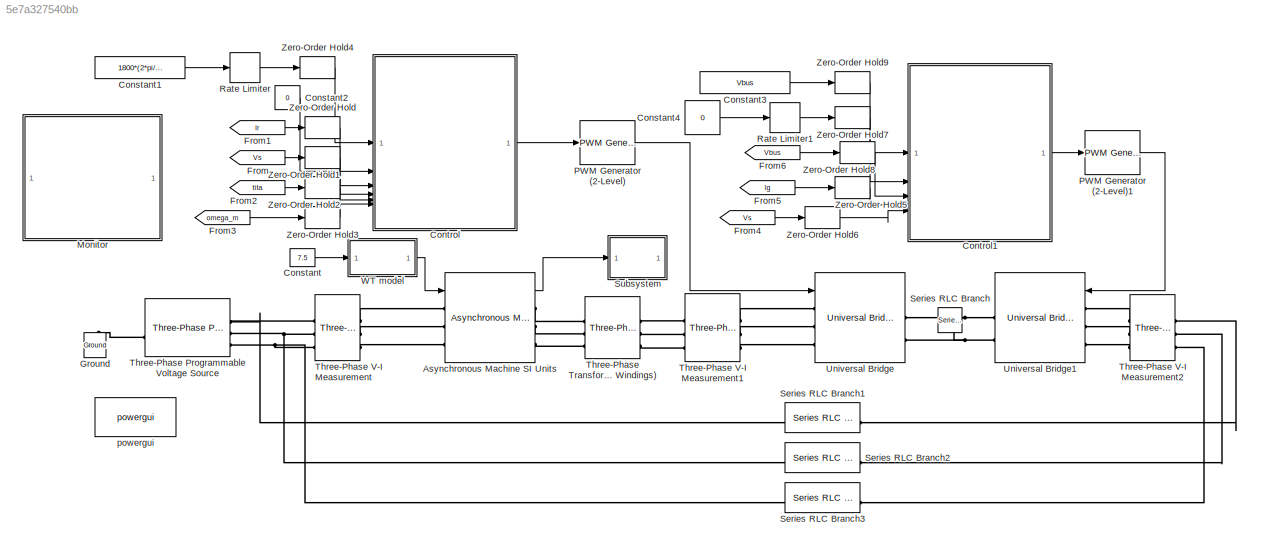
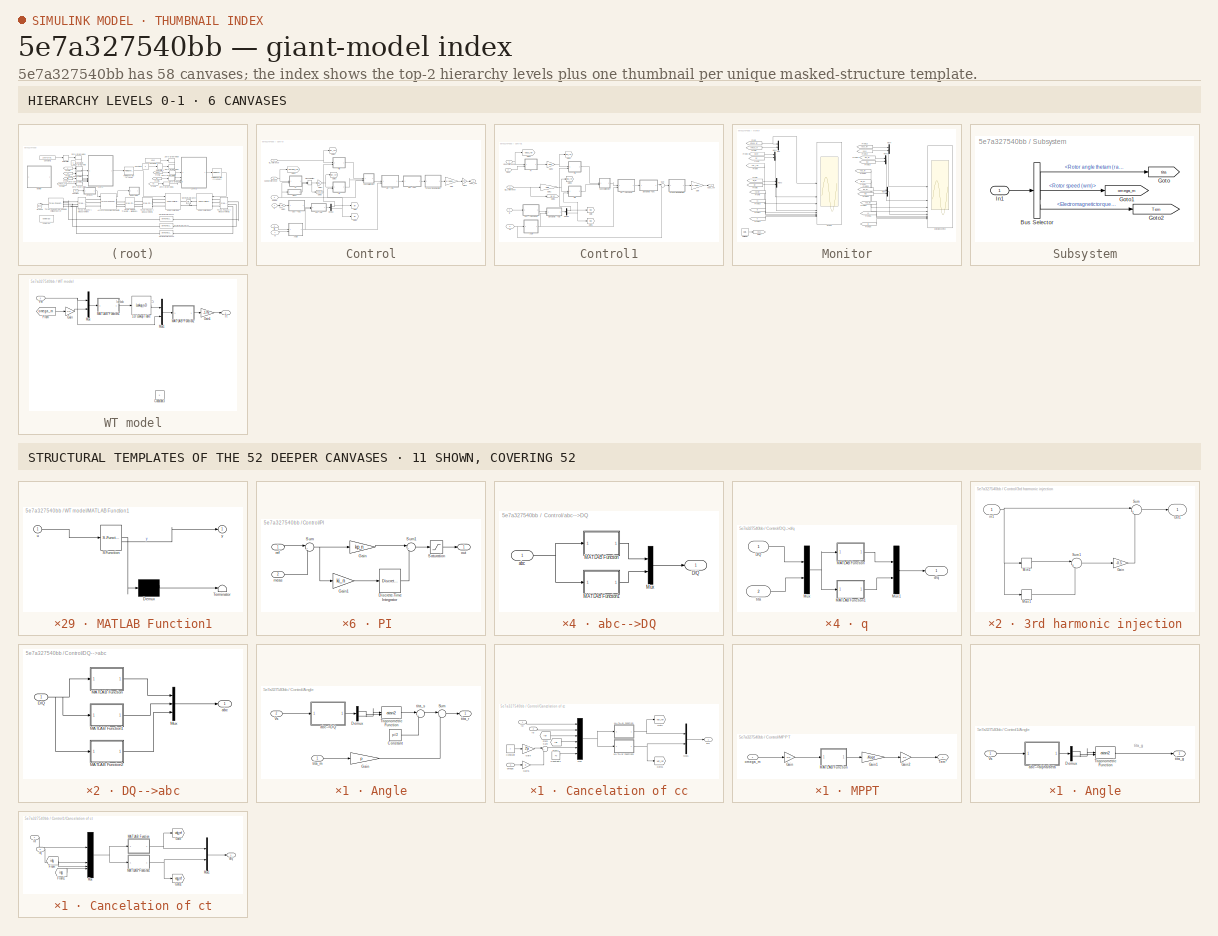
[diagram: thumbnail index - top-2 hierarchy levels (6 canvases) + 11 structural-template representatives of the remaining 52 canvases]
MODEL slx_5e7a327540bb
KIND model
CONFIG AbsTol = auto
CONFIG EnableMultiTasking = off
CONFIG FixedStep = auto
CONFIG MaxStep = auto
CONFIG MinStep = auto
CONFIG RelTol = 1e-3
CONFIG SampleTimeConstraint = Unconstrained
CONFIG SolverName = VariableStepAuto
CONFIG StartTime = 0.0
CONFIG StopTime = 10.0
BLOCK [Reference] Asynchronous Machine SI Units  REF=spsAsynchronousMachineSIUnitsLib/Asynchronous Machine
SI Units
  LibrarySourceBlock = sps_lib/Electrical Machines/Asynchronous Machine\nSI Units
  SourceBlock = spsAsynchronousMachineSIUnitsLib/Asynchronous Machine\nSI Units
  SourceType = Asynchronous Machine
BLOCK [Constant] Constant
  Value = 7.5
BLOCK [Constant] Constant1
  Value = 1800*(2*pi/60)
BLOCK [Constant] Constant2
  Value = 0
BLOCK [Constant] Constant3
  Value = Vbus
BLOCK [Constant] Constant4
  Value = 0
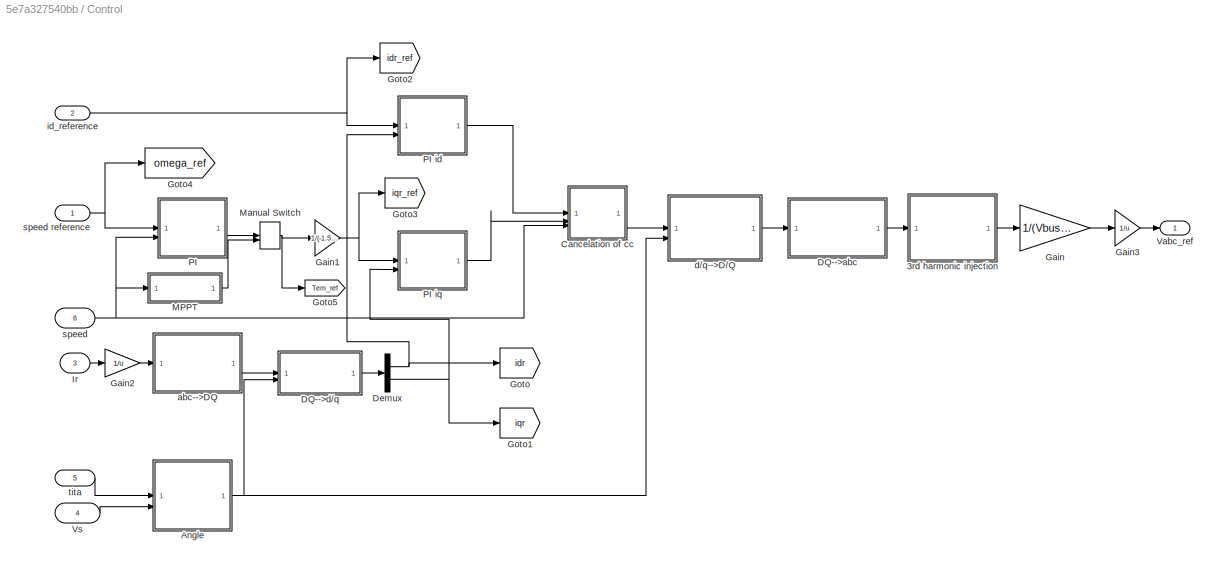
BLOCK [SubSystem] Control
BLOCK [SubSystem] Control/3rd harmonic injection
BLOCK [Gain] Control/3rd harmonic injection/Gain
  Gain = -0.5
BLOCK [MinMax] Control/3rd harmonic injection/Max1
  Function = max
BLOCK [MinMax] Control/3rd harmonic injection/Min1
BLOCK [Outport] Control/3rd harmonic injection/Out1
BLOCK [Sum] Control/3rd harmonic injection/Sum
  Inputs = |++
BLOCK [Sum] Control/3rd harmonic injection/Sum1
  Inputs = |++
BLOCK [Inport] Control/3rd harmonic injection/in1
BLOCK [SubSystem] Control/Angle
BLOCK [Constant] Control/Angle/Constant
  Value = pi/2
BLOCK [Demux] Control/Angle/Demux
  Outputs = 2
BLOCK [Gain] Control/Angle/Gain
  Gain = p
BLOCK [Sum] Control/Angle/Sum
  Inputs = |+-
BLOCK [Trigonometry] Control/Angle/Trigonometric Function
  Operator = atan2
BLOCK [Inport] Control/Angle/Vs
  Port = 2
BLOCK [SubSystem] Control/Angle/abc-->DQ
BLOCK [SubSystem] Control/Angle/abc-->DQ/MATLAB Function
  ErrorFcn = Stateflow.Translate.translate
  LibrarySourceBlock = simulink/User-Defined\nFunctions/MATLAB Function
  PermitHierarchicalResolution = ExplicitOnly
  SFBlockType = MATLAB Function
  TreatAsAtomicUnit = on
BLOCK [Demux] Control/Angle/abc-->DQ/MATLAB Function/ Demux 
  Outputs = 1
BLOCK [S-Function] Control/Angle/abc-->DQ/MATLAB Function/ SFunction 
  EnableBusSupport = on
  FunctionName = sf_sfun
  PortCounts = [1 2]
  SFcnIsStateOwnerBlock = off
  SFunctionDeploymentMode = off
  Tag = Stateflow S-Function 10
BLOCK [Terminator] Control/Angle/abc-->DQ/MATLAB Function/ Terminator 
BLOCK [Inport] Control/Angle/abc-->DQ/MATLAB Function/u
BLOCK [Outport] Control/Angle/abc-->DQ/MATLAB Function/y
BLOCK [SubSystem] Control/Angle/abc-->DQ/MATLAB Function1
  ErrorFcn = Stateflow.Translate.translate
  LibrarySourceBlock = simulink/User-Defined\nFunctions/MATLAB Function
  PermitHierarchicalResolution = ExplicitOnly
  SFBlockType = MATLAB Function
  TreatAsAtomicUnit = on
BLOCK [Demux] Control/Angle/abc-->DQ/MATLAB Function1/ Demux 
  Outputs = 1
BLOCK [S-Function] Control/Angle/abc-->DQ/MATLAB Function1/ SFunction 
  EnableBusSupport = on
  FunctionName = sf_sfun
  PortCounts = [1 2]
  SFcnIsStateOwnerBlock = off
  SFunctionDeploymentMode = off
  Tag = Stateflow S-Function 11
BLOCK [Terminator] Control/Angle/abc-->DQ/MATLAB Function1/ Terminator 
BLOCK [Inport] Control/Angle/abc-->DQ/MATLAB Function1/u
BLOCK [Outport] Control/Angle/abc-->DQ/MATLAB Function1/y
BLOCK [Mux] Control/Angle/abc-->DQ/Mux
  DisplayOption = bar
  Inputs = 2
BLOCK [Inport] Control/Angle/abc-->DQ/abc
BLOCK [Outport] Control/Angle/abc-->DQ/alpha//beta
BLOCK [Inport] Control/Angle/tita_m
BLOCK [Outport] Control/Angle/tita_r
BLOCK [Sum] Control/Angle/tita_s
  Inputs = |+-
  NameLocation = top
BLOCK [SubSystem] Control/Cancelation of cc
BLOCK [Constant] Control/Cancelation of cc/Constant
  Value = f
BLOCK [Constant] Control/Cancelation of cc/Constant1
  Value = Fs
BLOCK [From] Control/Cancelation of cc/From
  GotoTag = idr
  TagVisibility = global
BLOCK [From] Control/Cancelation of cc/From1
  GotoTag = iqr
  TagVisibility = global
BLOCK [Gain] Control/Cancelation of cc/Gain
  Gain = 2*pi
BLOCK [Gain] Control/Cancelation of cc/Gain1
  Gain = p
BLOCK [Goto] Control/Cancelation of cc/Goto
  GotoTag = vdr_ref
  TagVisibility = global
BLOCK [Goto] Control/Cancelation of cc/Goto1
  GotoTag = vqr_ref
  TagVisibility = global
BLOCK [SubSystem] Control/Cancelation of cc/MATLAB Function
  ErrorFcn = Stateflow.Translate.translate
  LibrarySourceBlock = simulink/User-Defined\nFunctions/MATLAB Function
  PermitHierarchicalResolution = ExplicitOnly
  SFBlockType = MATLAB Function
  TreatAsAtomicUnit = on
BLOCK [Demux] Control/Cancelation of cc/MATLAB Function/ Demux 
  Outputs = 1
BLOCK [S-Function] Control/Cancelation of cc/MATLAB Function/ SFunction 
  EnableBusSupport = on
  FunctionName = sf_sfun
  PortCounts = [1 2]
  SFcnIsStateOwnerBlock = off
  SFunctionDeploymentMode = off
  Tag = Stateflow S-Function 12
BLOCK [Terminator] Control/Cancelation of cc/MATLAB Function/ Terminator 
BLOCK [Inport] Control/Cancelation of cc/MATLAB Function/u
BLOCK [Outport] Control/Cancelation of cc/MATLAB Function/y
BLOCK [SubSystem] Control/Cancelation of cc/MATLAB Function1
  ErrorFcn = Stateflow.Translate.translate
  LibrarySourceBlock = simulink/User-Defined\nFunctions/MATLAB Function
  PermitHierarchicalResolution = ExplicitOnly
  SFBlockType = MATLAB Function
  TreatAsAtomicUnit = on
BLOCK [Demux] Control/Cancelation of cc/MATLAB Function1/ Demux 
  Outputs = 1
BLOCK [S-Function] Control/Cancelation of cc/MATLAB Function1/ SFunction 
  EnableBusSupport = on
  FunctionName = sf_sfun
  PortCounts = [1 2]
  SFcnIsStateOwnerBlock = off
  SFunctionDeploymentMode = off
  Tag = Stateflow S-Function 13
BLOCK [Terminator] Control/Cancelation of cc/MATLAB Function1/ Terminator 
BLOCK [Inport] Control/Cancelation of cc/MATLAB Function1/u
BLOCK [Outport] Control/Cancelation of cc/MATLAB Function1/y
BLOCK [Mux] Control/Cancelation of cc/Mux
  DisplayOption = bar
  Inputs = 6
BLOCK [Mux] Control/Cancelation of cc/Mux1
  DisplayOption = bar
  Inputs = 2
BLOCK [Sum] Control/Cancelation of cc/Sum
  Inputs = |+-
BLOCK [Outport] Control/Cancelation of cc/d//q
BLOCK [Inport] Control/Cancelation of cc/id
BLOCK [Inport] Control/Cancelation of cc/iq
  Port = 2
BLOCK [Inport] Control/Cancelation of cc/omega
  Port = 3
BLOCK [SubSystem] Control/DQ-->abc
BLOCK [Inport] Control/DQ-->abc/D//Q
BLOCK [SubSystem] Control/DQ-->abc/MATLAB Function
  ErrorFcn = Stateflow.Translate.translate
  LibrarySourceBlock = simulink/User-Defined\nFunctions/MATLAB Function
  PermitHierarchicalResolution = ExplicitOnly
  SFBlockType = MATLAB Function
  TreatAsAtomicUnit = on
BLOCK [Demux] Control/DQ-->abc/MATLAB Function/ Demux 
  Outputs = 1
BLOCK [S-Function] Control/DQ-->abc/MATLAB Function/ SFunction 
  EnableBusSupport = on
  FunctionName = sf_sfun
  PortCounts = [1 2]
  SFcnIsStateOwnerBlock = off
  SFunctionDeploymentMode = off
  Tag = Stateflow S-Function 2
BLOCK [Terminator] Control/DQ-->abc/MATLAB Function/ Terminator 
BLOCK [Inport] Control/DQ-->abc/MATLAB Function/u
BLOCK [Outport] Control/DQ-->abc/MATLAB Function/y
BLOCK [SubSystem] Control/DQ-->abc/MATLAB Function1
  ErrorFcn = Stateflow.Translate.translate
  LibrarySourceBlock = simulink/User-Defined\nFunctions/MATLAB Function
  PermitHierarchicalResolution = ExplicitOnly
  SFBlockType = MATLAB Function
  TreatAsAtomicUnit = on
BLOCK [Demux] Control/DQ-->abc/MATLAB Function1/ Demux 
  Outputs = 1
BLOCK [S-Function] Control/DQ-->abc/MATLAB Function1/ SFunction 
  EnableBusSupport = on
  FunctionName = sf_sfun
  PortCounts = [1 2]
  SFcnIsStateOwnerBlock = off
  SFunctionDeploymentMode = off
  Tag = Stateflow S-Function 1
BLOCK [Terminator] Control/DQ-->abc/MATLAB Function1/ Terminator 
BLOCK [Inport] Control/DQ-->abc/MATLAB Function1/u
BLOCK [Outport] Control/DQ-->abc/MATLAB Function1/y
BLOCK [SubSystem] Control/DQ-->abc/MATLAB Function2
  ErrorFcn = Stateflow.Translate.translate
  LibrarySourceBlock = simulink/User-Defined\nFunctions/MATLAB Function
  PermitHierarchicalResolution = ExplicitOnly
  SFBlockType = MATLAB Function
  TreatAsAtomicUnit = on
BLOCK [Demux] Control/DQ-->abc/MATLAB Function2/ Demux 
  Outputs = 1
BLOCK [S-Function] Control/DQ-->abc/MATLAB Function2/ SFunction 
  EnableBusSupport = on
  FunctionName = sf_sfun
  PortCounts = [1 2]
  SFcnIsStateOwnerBlock = off
  SFunctionDeploymentMode = off
  Tag = Stateflow S-Function 3
BLOCK [Terminator] Control/DQ-->abc/MATLAB Function2/ Terminator 
BLOCK [Inport] Control/DQ-->abc/MATLAB Function2/u
BLOCK [Outport] Control/DQ-->abc/MATLAB Function2/y
BLOCK [Mux] Control/DQ-->abc/Mux
  DisplayOption = bar
  Inputs = 3
BLOCK [Outport] Control/DQ-->abc/abc
BLOCK [SubSystem] Control/DQ-->d//q
BLOCK [Inport] Control/DQ-->d//q/D//Q
BLOCK [SubSystem] Control/DQ-->d//q/MATLAB Function
  ErrorFcn = Stateflow.Translate.translate
  LibrarySourceBlock = simulink/User-Defined\nFunctions/MATLAB Function
  PermitHierarchicalResolution = ExplicitOnly
  SFBlockType = MATLAB Function
  TreatAsAtomicUnit = on
BLOCK [Demux] Control/DQ-->d//q/MATLAB Function/ Demux 
  Outputs = 1
BLOCK [S-Function] Control/DQ-->d//q/MATLAB Function/ SFunction 
  EnableBusSupport = on
  FunctionName = sf_sfun
  PortCounts = [1 2]
  SFcnIsStateOwnerBlock = off
  SFunctionDeploymentMode = off
  Tag = Stateflow S-Function 6
BLOCK [Terminator] Control/DQ-->d//q/MATLAB Function/ Terminator 
BLOCK [Inport] Control/DQ-->d//q/MATLAB Function/u
BLOCK [Outport] Control/DQ-->d//q/MATLAB Function/y
BLOCK [SubSystem] Control/DQ-->d//q/MATLAB Function1
  ErrorFcn = Stateflow.Translate.translate
  LibrarySourceBlock = simulink/User-Defined\nFunctions/MATLAB Function
  PermitHierarchicalResolution = ExplicitOnly
  SFBlockType = MATLAB Function
  TreatAsAtomicUnit = on
BLOCK [Demux] Control/DQ-->d//q/MATLAB Function1/ Demux 
  Outputs = 1
BLOCK [S-Function] Control/DQ-->d//q/MATLAB Function1/ SFunction 
  EnableBusSupport = on
  FunctionName = sf_sfun
  PortCounts = [1 2]
  SFcnIsStateOwnerBlock = off
  SFunctionDeploymentMode = off
  Tag = Stateflow S-Function 7
BLOCK [Terminator] Control/DQ-->d//q/MATLAB Function1/ Terminator 
BLOCK [Inport] Control/DQ-->d//q/MATLAB Function1/u
BLOCK [Outport] Control/DQ-->d//q/MATLAB Function1/y
BLOCK [Mux] Control/DQ-->d//q/Mux
  DisplayOption = bar
  Inputs = 2
BLOCK [Mux] Control/DQ-->d//q/Mux1
  DisplayOption = bar
  Inputs = 2
BLOCK [Outport] Control/DQ-->d//q/d//q
BLOCK [Inport] Control/DQ-->d//q/tita
  Port = 2
BLOCK [Demux] Control/Demux
  Outputs = 2
BLOCK [Gain] Control/Gain
  Gain = 1/(Vbus/2)
BLOCK [Gain] Control/Gain1
  Gain = 1/(-1.5*p*Lm/Ls*Fs)
BLOCK [Gain] Control/Gain2
  Gain = 1/u
BLOCK [Gain] Control/Gain3
  Gain = 1/u
BLOCK [Goto] Control/Goto
  GotoTag = idr
  TagVisibility = global
BLOCK [Goto] Control/Goto1
  GotoTag = iqr
  TagVisibility = global
BLOCK [Goto] Control/Goto2
  GotoTag = idr_ref
  TagVisibility = global
BLOCK [Goto] Control/Goto3
  GotoTag = iqr_ref
  TagVisibility = global
BLOCK [Goto] Control/Goto4
  GotoTag = omega_ref
  TagVisibility = global
BLOCK [Goto] Control/Goto5
  GotoTag = Tem_ref
  TagVisibility = global
BLOCK [Inport] Control/Ir
  Port = 3
BLOCK [SubSystem] Control/MPPT
BLOCK [Gain] Control/MPPT/Gain
  Gain = 1/N
BLOCK [Gain] Control/MPPT/Gain1
  Gain = -Kopt
BLOCK [Gain] Control/MPPT/Gain2
  Gain = 1/n
BLOCK [SubSystem] Control/MPPT/MATLAB Function
  ErrorFcn = Stateflow.Translate.translate
  LibrarySourceBlock = simulink/User-Defined\nFunctions/MATLAB Function
  PermitHierarchicalResolution = ExplicitOnly
  SFBlockType = MATLAB Function
  TreatAsAtomicUnit = on
BLOCK [Demux] Control/MPPT/MATLAB Function/ Demux 
  Outputs = 1
BLOCK [S-Function] Control/MPPT/MATLAB Function/ SFunction 
  EnableBusSupport = on
  FunctionName = sf_sfun
  PortCounts = [1 2]
  SFcnIsStateOwnerBlock = off
  SFunctionDeploymentMode = off
  Tag = Stateflow S-Function 17
BLOCK [Terminator] Control/MPPT/MATLAB Function/ Terminator 
BLOCK [Inport] Control/MPPT/MATLAB Function/u
BLOCK [Outport] Control/MPPT/MATLAB Function/y
BLOCK [Outport] Control/MPPT/Tem*
BLOCK [Inport] Control/MPPT/omega_m
BLOCK [ManualSwitch] Control/Manual Switch
  CurrentSetting = 0
BLOCK [SubSystem] Control/PI 
BLOCK [DiscreteIntegrator] Control/PI /Discrete-Time Integrator
  ICPrevOutput = DiscIntNeverNeededParam
  ICPrevScaledInput = DiscIntNeverNeededParam
  InitialConditionSetting = Auto
  LimitOutput = on
  LowerSaturationLimit = -Tem
  SampleTime = 1/fsw
  UpperSaturationLimit = Tem
BLOCK [Gain] Control/PI /Gain
  Gain = kp_n
BLOCK [Gain] Control/PI /Gain1
  Gain = ki_n
BLOCK [Saturate] Control/PI /Saturation
  LowerLimit = -Tem
  UpperLimit = Tem
BLOCK [Sum] Control/PI /Sum
  Inputs = |+-
BLOCK [Sum] Control/PI /Sum1
  Inputs = |++
BLOCK [Inport] Control/PI /meas
  Port = 2
BLOCK [Outport] Control/PI /out
BLOCK [Inport] Control/PI /ref
BLOCK [SubSystem] Control/PI id
BLOCK [DiscreteIntegrator] Control/PI id/Discrete-Time Integrator
  ICPrevOutput = DiscIntNeverNeededParam
  ICPrevScaledInput = DiscIntNeverNeededParam
  InitialConditionSetting = Auto
  LimitOutput = on
  LowerSaturationLimit = -Vbus/sqrt(3)
  SampleTime = 1/fsw
  UpperSaturationLimit = Vbus/sqrt(3)
BLOCK [Gain] Control/PI id/Gain
  Gain = kp_id
BLOCK [Gain] Control/PI id/Gain1
  Gain = ki_id
BLOCK [Saturate] Control/PI id/Saturation
  LowerLimit = -Vbus/sqrt(3)
  UpperLimit = Vbus/sqrt(3)
BLOCK [Sum] Control/PI id/Sum
  Inputs = |+-
BLOCK [Sum] Control/PI id/Sum1
  Inputs = |++
BLOCK [Inport] Control/PI id/meas
  Port = 2
BLOCK [Outport] Control/PI id/out
BLOCK [Inport] Control/PI id/ref
BLOCK [SubSystem] Control/PI iq
BLOCK [DiscreteIntegrator] Control/PI iq/Discrete-Time Integrator
  ICPrevOutput = DiscIntNeverNeededParam
  ICPrevScaledInput = DiscIntNeverNeededParam
  InitialConditionSetting = Auto
  LimitOutput = on
  LowerSaturationLimit = -Vbus/sqrt(3)
  SampleTime = 1/fsw
  UpperSaturationLimit = Vbus/sqrt(3)
BLOCK [Gain] Control/PI iq/Gain
  Gain = kp_iq
BLOCK [Gain] Control/PI iq/Gain1
  Gain = ki_iq
BLOCK [Saturate] Control/PI iq/Saturation
  LowerLimit = -Vbus/sqrt(3)
  UpperLimit = Vbus/sqrt(3)
BLOCK [Sum] Control/PI iq/Sum
  Inputs = |+-
BLOCK [Sum] Control/PI iq/Sum1
  Inputs = |++
BLOCK [Inport] Control/PI iq/meas
  Port = 2
BLOCK [Outport] Control/PI iq/out
BLOCK [Inport] Control/PI iq/ref
BLOCK [Outport] Control/Vabc_ref
BLOCK [Inport] Control/Vs
  Port = 4
BLOCK [SubSystem] Control/abc-->DQ
BLOCK [Outport] Control/abc-->DQ/D//Q
BLOCK [SubSystem] Control/abc-->DQ/MATLAB Function
  ErrorFcn = Stateflow.Translate.translate
  LibrarySourceBlock = simulink/User-Defined\nFunctions/MATLAB Function
  PermitHierarchicalResolution = ExplicitOnly
  SFBlockType = MATLAB Function
  TreatAsAtomicUnit = on
BLOCK [Demux] Control/abc-->DQ/MATLAB Function/ Demux 
  Outputs = 1
BLOCK [S-Function] Control/abc-->DQ/MATLAB Function/ SFunction 
  EnableBusSupport = on
  FunctionName = sf_sfun
  PortCounts = [1 2]
  SFcnIsStateOwnerBlock = off
  SFunctionDeploymentMode = off
  Tag = Stateflow S-Function 8
BLOCK [Terminator] Control/abc-->DQ/MATLAB Function/ Terminator 
BLOCK [Inport] Control/abc-->DQ/MATLAB Function/u
BLOCK [Outport] Control/abc-->DQ/MATLAB Function/y
BLOCK [SubSystem] Control/abc-->DQ/MATLAB Function1
  ErrorFcn = Stateflow.Translate.translate
  LibrarySourceBlock = simulink/User-Defined\nFunctions/MATLAB Function
  PermitHierarchicalResolution = ExplicitOnly
  SFBlockType = MATLAB Function
  TreatAsAtomicUnit = on
BLOCK [Demux] Control/abc-->DQ/MATLAB Function1/ Demux 
  Outputs = 1
BLOCK [S-Function] Control/abc-->DQ/MATLAB Function1/ SFunction 
  EnableBusSupport = on
  FunctionName = sf_sfun
  PortCounts = [1 2]
  SFcnIsStateOwnerBlock = off
  SFunctionDeploymentMode = off
  Tag = Stateflow S-Function 9
BLOCK [Terminator] Control/abc-->DQ/MATLAB Function1/ Terminator 
BLOCK [Inport] Control/abc-->DQ/MATLAB Function1/u
BLOCK [Outport] Control/abc-->DQ/MATLAB Function1/y
BLOCK [Mux] Control/abc-->DQ/Mux
  DisplayOption = bar
  Inputs = 2
BLOCK [Inport] Control/abc-->DQ/abc
BLOCK [SubSystem] Control/d//q-->D//Q
BLOCK [Outport] Control/d//q-->D//Q/D//Q
BLOCK [SubSystem] Control/d//q-->D//Q/MATLAB Function
  ErrorFcn = Stateflow.Translate.translate
  LibrarySourceBlock = simulink/User-Defined\nFunctions/MATLAB Function
  PermitHierarchicalResolution = ExplicitOnly
  SFBlockType = MATLAB Function
  TreatAsAtomicUnit = on
BLOCK [Demux] Control/d//q-->D//Q/MATLAB Function/ Demux 
  Outputs = 1
BLOCK [S-Function] Control/d//q-->D//Q/MATLAB Function/ SFunction 
  EnableBusSupport = on
  FunctionName = sf_sfun
  PortCounts = [1 2]
  SFcnIsStateOwnerBlock = off
  SFunctionDeploymentMode = off
  Tag = Stateflow S-Function 4
BLOCK [Terminator] Control/d//q-->D//Q/MATLAB Function/ Terminator 
BLOCK [Inport] Control/d//q-->D//Q/MATLAB Function/u
BLOCK [Outport] Control/d//q-->D//Q/MATLAB Function/y
BLOCK [SubSystem] Control/d//q-->D//Q/MATLAB Function1
  ErrorFcn = Stateflow.Translate.translate
  LibrarySourceBlock = simulink/User-Defined\nFunctions/MATLAB Function
  PermitHierarchicalResolution = ExplicitOnly
  SFBlockType = MATLAB Function
  TreatAsAtomicUnit = on
BLOCK [Demux] Control/d//q-->D//Q/MATLAB Function1/ Demux 
  Outputs = 1
BLOCK [S-Function] Control/d//q-->D//Q/MATLAB Function1/ SFunction 
  EnableBusSupport = on
  FunctionName = sf_sfun
  PortCounts = [1 2]
  SFcnIsStateOwnerBlock = off
  SFunctionDeploymentMode = off
  Tag = Stateflow S-Function 5
BLOCK [Terminator] Control/d//q-->D//Q/MATLAB Function1/ Terminator 
BLOCK [Inport] Control/d//q-->D//Q/MATLAB Function1/u
BLOCK [Outport] Control/d//q-->D//Q/MATLAB Function1/y
BLOCK [Mux] Control/d//q-->D//Q/Mux
  DisplayOption = bar
  Inputs = 2
BLOCK [Mux] Control/d//q-->D//Q/Mux1
  DisplayOption = bar
  Inputs = 2
BLOCK [Inport] Control/d//q-->D//Q/d//q
BLOCK [Inport] Control/d//q-->D//Q/tita
  Port = 2
BLOCK [Inport] Control/id_reference
  Port = 2
BLOCK [Inport] Control/speed
  Port = 6
BLOCK [Inport] Control/speed reference
BLOCK [Inport] Control/tita
  Port = 5
BLOCK [SubSystem] Control1
BLOCK [SubSystem] Control1/3rd harmonic injection
BLOCK [Gain] Control1/3rd harmonic injection/Gain
  Gain = -0.5
BLOCK [MinMax] Control1/3rd harmonic injection/Max1
  Function = max
BLOCK [MinMax] Control1/3rd harmonic injection/Min1
BLOCK [Outport] Control1/3rd harmonic injection/Out1
BLOCK [Sum] Control1/3rd harmonic injection/Sum
  Inputs = |++
BLOCK [Sum] Control1/3rd harmonic injection/Sum1
  Inputs = |++
BLOCK [Inport] Control1/3rd harmonic injection/in1
BLOCK [SubSystem] Control1/Angle
BLOCK [Demux] Control1/Angle/Demux
  Outputs = 2
BLOCK [Trigonometry] Control1/Angle/Trigonometric Function
  Operator = atan2
BLOCK [Inport] Control1/Angle/Vs
BLOCK [SubSystem] Control1/Angle/abc-->alpha//beta
BLOCK [SubSystem] Control1/Angle/abc-->alpha//beta/MATLAB Function
  ErrorFcn = Stateflow.Translate.translate
  LibrarySourceBlock = simulink/User-Defined\nFunctions/MATLAB Function
  PermitHierarchicalResolution = ExplicitOnly
  SFBlockType = MATLAB Function
  TreatAsAtomicUnit = on
BLOCK [Demux] Control1/Angle/abc-->alpha//beta/MATLAB Function/ Demux 
  Outputs = 1
BLOCK [S-Function] Control1/Angle/abc-->alpha//beta/MATLAB Function/ SFunction 
  EnableBusSupport = on
  FunctionName = sf_sfun
  PortCounts = [1 2]
  SFcnIsStateOwnerBlock = off
  SFunctionDeploymentMode = off
  Tag = Stateflow S-Function 16
BLOCK [Terminator] Control1/Angle/abc-->alpha//beta/MATLAB Function/ Terminator 
BLOCK [Inport] Control1/Angle/abc-->alpha//beta/MATLAB Function/u
BLOCK [Outport] Control1/Angle/abc-->alpha//beta/MATLAB Function/y
BLOCK [SubSystem] Control1/Angle/abc-->alpha//beta/MATLAB Function1
  ErrorFcn = Stateflow.Translate.translate
  LibrarySourceBlock = simulink/User-Defined\nFunctions/MATLAB Function
  PermitHierarchicalResolution = ExplicitOnly
  SFBlockType = MATLAB Function
  TreatAsAtomicUnit = on
BLOCK [Demux] Control1/Angle/abc-->alpha//beta/MATLAB Function1/ Demux 
  Outputs = 1
BLOCK [S-Function] Control1/Angle/abc-->alpha//beta/MATLAB Function1/ SFunction 
  EnableBusSupport = on
  FunctionName = sf_sfun
  PortCounts = [1 2]
  SFcnIsStateOwnerBlock = off
  SFunctionDeploymentMode = off
  Tag = Stateflow S-Function 18
BLOCK [Terminator] Control1/Angle/abc-->alpha//beta/MATLAB Function1/ Terminator 
BLOCK [Inport] Control1/Angle/abc-->alpha//beta/MATLAB Function1/u
BLOCK [Outport] Control1/Angle/abc-->alpha//beta/MATLAB Function1/y
BLOCK [Mux] Control1/Angle/abc-->alpha//beta/Mux
  DisplayOption = bar
  Inputs = 2
BLOCK [Inport] Control1/Angle/abc-->alpha//beta/abc
BLOCK [Outport] Control1/Angle/abc-->alpha//beta/alpha//beta
BLOCK [Outport] Control1/Angle/tita_g
BLOCK [SubSystem] Control1/Cancelation of ct
BLOCK [From] Control1/Cancelation of ct/From
  GotoTag = idg
  TagVisibility = global
BLOCK [From] Control1/Cancelation of ct/From1
  GotoTag = iqg
  TagVisibility = global
BLOCK [Goto] Control1/Cancelation of ct/Goto
  GotoTag = vdg_ref
  TagVisibility = global
BLOCK [Goto] Control1/Cancelation of ct/Goto1
  GotoTag = vqg_ref
  TagVisibility = global
BLOCK [SubSystem] Control1/Cancelation of ct/MATLAB Function
  ErrorFcn = Stateflow.Translate.translate
  LibrarySourceBlock = simulink/User-Defined\nFunctions/MATLAB Function
  PermitHierarchicalResolution = ExplicitOnly
  SFBlockType = MATLAB Function
  TreatAsAtomicUnit = on
BLOCK [Demux] Control1/Cancelation of ct/MATLAB Function/ Demux 
  Outputs = 1
BLOCK [S-Function] Control1/Cancelation of ct/MATLAB Function/ SFunction 
  EnableBusSupport = on
  FunctionName = sf_sfun
  PortCounts = [1 2]
  SFcnIsStateOwnerBlock = off
  SFunctionDeploymentMode = off
  Tag = Stateflow S-Function 19
BLOCK [Terminator] Control1/Cancelation of ct/MATLAB Function/ Terminator 
BLOCK [Inport] Control1/Cancelation of ct/MATLAB Function/u
BLOCK [Outport] Control1/Cancelation of ct/MATLAB Function/y
BLOCK [SubSystem] Control1/Cancelation of ct/MATLAB Function1
  ErrorFcn = Stateflow.Translate.translate
  LibrarySourceBlock = simulink/User-Defined\nFunctions/MATLAB Function
  PermitHierarchicalResolution = ExplicitOnly
  SFBlockType = MATLAB Function
  TreatAsAtomicUnit = on
BLOCK [Demux] Control1/Cancelation of ct/MATLAB Function1/ Demux 
  Outputs = 1
BLOCK [S-Function] Control1/Cancelation of ct/MATLAB Function1/ SFunction 
  EnableBusSupport = on
  FunctionName = sf_sfun
  PortCounts = [1 2]
  SFcnIsStateOwnerBlock = off
  SFunctionDeploymentMode = off
  Tag = Stateflow S-Function 20
BLOCK [Terminator] Control1/Cancelation of ct/MATLAB Function1/ Terminator 
BLOCK [Inport] Control1/Cancelation of ct/MATLAB Function1/u
BLOCK [Outport] Control1/Cancelation of ct/MATLAB Function1/y
BLOCK [Mux] Control1/Cancelation of ct/Mux
  DisplayOption = bar
BLOCK [Mux] Control1/Cancelation of ct/Mux1
  DisplayOption = bar
  Inputs = 2
BLOCK [Outport] Control1/Cancelation of ct/d//q
BLOCK [Inport] Control1/Cancelation of ct/id
BLOCK [Inport] Control1/Cancelation of ct/iq
  Port = 2
BLOCK [Demux] Control1/Demux
  Outputs = 2
BLOCK [Gain] Control1/Gain
  Gain = 1/(Vbus/2)
BLOCK [Gain] Control1/Gain1
  Gain = Kqg
BLOCK [Gain] Control1/Gain2
  Gain = Kpg
BLOCK [Goto] Control1/Goto
  GotoTag = idg
  TagVisibility = global
BLOCK [Goto] Control1/Goto1
  GotoTag = iqg
  TagVisibility = global
BLOCK [Goto] Control1/Goto2
  GotoTag = idg_ref
  TagVisibility = global
BLOCK [Goto] Control1/Goto3
  GotoTag = iqg_ref
  TagVisibility = global
BLOCK [Goto] Control1/Goto4
  GotoTag = Vbus_ref
  TagVisibility = global
BLOCK [Goto] Control1/Goto5
  GotoTag = Qg_ref
  TagVisibility = global
BLOCK [Inport] Control1/Ig
  Port = 4
BLOCK [SubSystem] Control1/PI 
BLOCK [DiscreteIntegrator] Control1/PI /Discrete-Time Integrator
  ICPrevOutput = DiscIntNeverNeededParam
  ICPrevScaledInput = DiscIntNeverNeededParam
  InitialConditionSetting = Auto
  LimitOutput = on
  LowerSaturationLimit = -Ps*smax
  SampleTime = 1/fsw
  UpperSaturationLimit = Ps*smax
BLOCK [Gain] Control1/PI /Gain
  Gain = Kp_v
BLOCK [Gain] Control1/PI /Gain1
  Gain = Ki_v
BLOCK [Saturate] Control1/PI /Saturation
  LowerLimit = -Ps*smax
  UpperLimit = Ps*smax
BLOCK [Sum] Control1/PI /Sum
  Inputs = |+-
BLOCK [Sum] Control1/PI /Sum1
  Inputs = |++
BLOCK [Inport] Control1/PI /meas
  Port = 2
BLOCK [Outport] Control1/PI /out
BLOCK [Inport] Control1/PI /ref
BLOCK [SubSystem] Control1/PI id
BLOCK [DiscreteIntegrator] Control1/PI id/Discrete-Time Integrator
  ICPrevOutput = DiscIntNeverNeededParam
  ICPrevScaledInput = DiscIntNeverNeededParam
  InitialConditionSetting = Auto
  LimitOutput = on
  LowerSaturationLimit = -Vbus/sqrt(3)
  SampleTime = 1/fsw
  UpperSaturationLimit = Vbus/sqrt(3)
BLOCK [Gain] Control1/PI id/Gain
  Gain = Kp_idg
BLOCK [Gain] Control1/PI id/Gain1
  Gain = Ki_idg
BLOCK [Saturate] Control1/PI id/Saturation
  LowerLimit = -Vbus/sqrt(3)
  UpperLimit = Vbus/sqrt(3)
BLOCK [Sum] Control1/PI id/Sum
  Inputs = |+-
BLOCK [Sum] Control1/PI id/Sum1
  Inputs = |++
BLOCK [Inport] Control1/PI id/meas
  Port = 2
BLOCK [Outport] Control1/PI id/out
BLOCK [Inport] Control1/PI id/ref
BLOCK [SubSystem] Control1/PI iq
BLOCK [DiscreteIntegrator] Control1/PI iq/Discrete-Time Integrator
  ICPrevOutput = DiscIntNeverNeededParam
  ICPrevScaledInput = DiscIntNeverNeededParam
  InitialConditionSetting = Auto
  LimitOutput = on
  LowerSaturationLimit = -Vbus/sqrt(3)
  SampleTime = 1/fsw
  UpperSaturationLimit = Vbus/sqrt(3)
BLOCK [Gain] Control1/PI iq/Gain
  Gain = Kp_iqg
BLOCK [Gain] Control1/PI iq/Gain1
  Gain = Ki_iqg
BLOCK [Saturate] Control1/PI iq/Saturation
  LowerLimit = -Vbus/sqrt(3)
  UpperLimit = Vbus/sqrt(3)
BLOCK [Sum] Control1/PI iq/Sum
  Inputs = |+-
BLOCK [Sum] Control1/PI iq/Sum1
  Inputs = |++
BLOCK [Inport] Control1/PI iq/meas
  Port = 2
BLOCK [Outport] Control1/PI iq/out
BLOCK [Inport] Control1/PI iq/ref
BLOCK [Inport] Control1/Qg_reference
  Port = 2
BLOCK [Sum] Control1/Sum
  Inputs = |++
BLOCK [Outport] Control1/Vabc_ref
BLOCK [Inport] Control1/Vbus
  Port = 3
BLOCK [Inport] Control1/Vbus reference
BLOCK [Inport] Control1/Vs
  Port = 5
BLOCK [SubSystem] Control1/abc-->alpha//beta
BLOCK [SubSystem] Control1/abc-->alpha//beta/MATLAB Function
  ErrorFcn = Stateflow.Translate.translate
  LibrarySourceBlock = simulink/User-Defined\nFunctions/MATLAB Function
  PermitHierarchicalResolution = ExplicitOnly
  SFBlockType = MATLAB Function
  TreatAsAtomicUnit = on
BLOCK [Demux] Control1/abc-->alpha//beta/MATLAB Function/ Demux 
  Outputs = 1
BLOCK [S-Function] Control1/abc-->alpha//beta/MATLAB Function/ SFunction 
  EnableBusSupport = on
  FunctionName = sf_sfun
  PortCounts = [1 2]
  SFcnIsStateOwnerBlock = off
  SFunctionDeploymentMode = off
  Tag = Stateflow S-Function 25
BLOCK [Terminator] Control1/abc-->alpha//beta/MATLAB Function/ Terminator 
BLOCK [Inport] Control1/abc-->alpha//beta/MATLAB Function/u
BLOCK [Outport] Control1/abc-->alpha//beta/MATLAB Function/y
BLOCK [SubSystem] Control1/abc-->alpha//beta/MATLAB Function1
  ErrorFcn = Stateflow.Translate.translate
  LibrarySourceBlock = simulink/User-Defined\nFunctions/MATLAB Function
  PermitHierarchicalResolution = ExplicitOnly
  SFBlockType = MATLAB Function
  TreatAsAtomicUnit = on
BLOCK [Demux] Control1/abc-->alpha//beta/MATLAB Function1/ Demux 
  Outputs = 1
BLOCK [S-Function] Control1/abc-->alpha//beta/MATLAB Function1/ SFunction 
  EnableBusSupport = on
  FunctionName = sf_sfun
  PortCounts = [1 2]
  SFcnIsStateOwnerBlock = off
  SFunctionDeploymentMode = off
  Tag = Stateflow S-Function 26
BLOCK [Terminator] Control1/abc-->alpha//beta/MATLAB Function1/ Terminator 
BLOCK [Inport] Control1/abc-->alpha//beta/MATLAB Function1/u
BLOCK [Outport] Control1/abc-->alpha//beta/MATLAB Function1/y
BLOCK [Mux] Control1/abc-->alpha//beta/Mux
  DisplayOption = bar
  Inputs = 2
BLOCK [Inport] Control1/abc-->alpha//beta/abc
BLOCK [Outport] Control1/abc-->alpha//beta/alpha//beta
BLOCK [SubSystem] Control1/alpha//beta-->d//q
BLOCK [Inport] Control1/alpha//beta-->d//q/D//Q
BLOCK [SubSystem] Control1/alpha//beta-->d//q/MATLAB Function
  ErrorFcn = Stateflow.Translate.translate
  LibrarySourceBlock = simulink/User-Defined\nFunctions/MATLAB Function
  PermitHierarchicalResolution = ExplicitOnly
  SFBlockType = MATLAB Function
  TreatAsAtomicUnit = on
BLOCK [Demux] Control1/alpha//beta-->d//q/MATLAB Function/ Demux 
  Outputs = 1
BLOCK [S-Function] Control1/alpha//beta-->d//q/MATLAB Function/ SFunction 
  EnableBusSupport = on
  FunctionName = sf_sfun
  PortCounts = [1 2]
  SFcnIsStateOwnerBlock = off
  SFunctionDeploymentMode = off
  Tag = Stateflow S-Function 29
BLOCK [Terminator] Control1/alpha//beta-->d//q/MATLAB Function/ Terminator 
BLOCK [Inport] Control1/alpha//beta-->d//q/MATLAB Function/u
BLOCK [Outport] Control1/alpha//beta-->d//q/MATLAB Function/y
BLOCK [SubSystem] Control1/alpha//beta-->d//q/MATLAB Function1
  ErrorFcn = Stateflow.Translate.translate
  LibrarySourceBlock = simulink/User-Defined\nFunctions/MATLAB Function
  PermitHierarchicalResolution = ExplicitOnly
  SFBlockType = MATLAB Function
  TreatAsAtomicUnit = on
BLOCK [Demux] Control1/alpha//beta-->d//q/MATLAB Function1/ Demux 
  Outputs = 1
BLOCK [S-Function] Control1/alpha//beta-->d//q/MATLAB Function1/ SFunction 
  EnableBusSupport = on
  FunctionName = sf_sfun
  PortCounts = [1 2]
  SFcnIsStateOwnerBlock = off
  SFunctionDeploymentMode = off
  Tag = Stateflow S-Function 30
BLOCK [Terminator] Control1/alpha//beta-->d//q/MATLAB Function1/ Terminator 
BLOCK [Inport] Control1/alpha//beta-->d//q/MATLAB Function1/u
BLOCK [Outport] Control1/alpha//beta-->d//q/MATLAB Function1/y
BLOCK [Mux] Control1/alpha//beta-->d//q/Mux
  DisplayOption = bar
  Inputs = 2
BLOCK [Mux] Control1/alpha//beta-->d//q/Mux1
  DisplayOption = bar
  Inputs = 2
BLOCK [Outport] Control1/alpha//beta-->d//q/d//q
BLOCK [Inport] Control1/alpha//beta-->d//q/tita
  Port = 2
BLOCK [SubSystem] Control1/alpha//beta->abc
BLOCK [SubSystem] Control1/alpha//beta->abc/MATLAB Function
  ErrorFcn = Stateflow.Translate.translate
  LibrarySourceBlock = simulink/User-Defined\nFunctions/MATLAB Function
  PermitHierarchicalResolution = ExplicitOnly
  SFBlockType = MATLAB Function
  TreatAsAtomicUnit = on
BLOCK [Demux] Control1/alpha//beta->abc/MATLAB Function/ Demux 
  Outputs = 1
BLOCK [S-Function] Control1/alpha//beta->abc/MATLAB Function/ SFunction 
  EnableBusSupport = on
  FunctionName = sf_sfun
  PortCounts = [1 2]
  SFcnIsStateOwnerBlock = off
  SFunctionDeploymentMode = off
  Tag = Stateflow S-Function 21
BLOCK [Terminator] Control1/alpha//beta->abc/MATLAB Function/ Terminator 
BLOCK [Inport] Control1/alpha//beta->abc/MATLAB Function/u
BLOCK [Outport] Control1/alpha//beta->abc/MATLAB Function/y
BLOCK [SubSystem] Control1/alpha//beta->abc/MATLAB Function1
  ErrorFcn = Stateflow.Translate.translate
  LibrarySourceBlock = simulink/User-Defined\nFunctions/MATLAB Function
  PermitHierarchicalResolution = ExplicitOnly
  SFBlockType = MATLAB Function
  TreatAsAtomicUnit = on
BLOCK [Demux] Control1/alpha//beta->abc/MATLAB Function1/ Demux 
  Outputs = 1
BLOCK [S-Function] Control1/alpha//beta->abc/MATLAB Function1/ SFunction 
  EnableBusSupport = on
  FunctionName = sf_sfun
  PortCounts = [1 2]
  SFcnIsStateOwnerBlock = off
  SFunctionDeploymentMode = off
  Tag = Stateflow S-Function 22
BLOCK [Terminator] Control1/alpha//beta->abc/MATLAB Function1/ Terminator 
BLOCK [Inport] Control1/alpha//beta->abc/MATLAB Function1/u
BLOCK [Outport] Control1/alpha//beta->abc/MATLAB Function1/y
BLOCK [SubSystem] Control1/alpha//beta->abc/MATLAB Function2
  ErrorFcn = Stateflow.Translate.translate
  LibrarySourceBlock = simulink/User-Defined\nFunctions/MATLAB Function
  PermitHierarchicalResolution = ExplicitOnly
  SFBlockType = MATLAB Function
  TreatAsAtomicUnit = on
BLOCK [Demux] Control1/alpha//beta->abc/MATLAB Function2/ Demux 
  Outputs = 1
BLOCK [S-Function] Control1/alpha//beta->abc/MATLAB Function2/ SFunction 
  EnableBusSupport = on
  FunctionName = sf_sfun
  PortCounts = [1 2]
  SFcnIsStateOwnerBlock = off
  SFunctionDeploymentMode = off
  Tag = Stateflow S-Function 23
BLOCK [Terminator] Control1/alpha//beta->abc/MATLAB Function2/ Terminator 
BLOCK [Inport] Control1/alpha//beta->abc/MATLAB Function2/u
BLOCK [Outport] Control1/alpha//beta->abc/MATLAB Function2/y
BLOCK [Mux] Control1/alpha//beta->abc/Mux
  DisplayOption = bar
  Inputs = 3
BLOCK [Outport] Control1/alpha//beta->abc/abc
BLOCK [Inport] Control1/alpha//beta->abc/alpha//beta
BLOCK [SubSystem] Control1/d//q-->alpha//beta
BLOCK [SubSystem] Control1/d//q-->alpha//beta/MATLAB Function
  ErrorFcn = Stateflow.Translate.translate
  LibrarySourceBlock = simulink/User-Defined\nFunctions/MATLAB Function
  PermitHierarchicalResolution = ExplicitOnly
  SFBlockType = MATLAB Function
  TreatAsAtomicUnit = on
BLOCK [Demux] Control1/d//q-->alpha//beta/MATLAB Function/ Demux 
  Outputs = 1
BLOCK [S-Function] Control1/d//q-->alpha//beta/MATLAB Function/ SFunction 
  EnableBusSupport = on
  FunctionName = sf_sfun
  PortCounts = [1 2]
  SFcnIsStateOwnerBlock = off
  SFunctionDeploymentMode = off
  Tag = Stateflow S-Function 27
BLOCK [Terminator] Control1/d//q-->alpha//beta/MATLAB Function/ Terminator 
BLOCK [Inport] Control1/d//q-->alpha//beta/MATLAB Function/u
BLOCK [Outport] Control1/d//q-->alpha//beta/MATLAB Function/y
BLOCK [SubSystem] Control1/d//q-->alpha//beta/MATLAB Function1
  ErrorFcn = Stateflow.Translate.translate
  LibrarySourceBlock = simulink/User-Defined\nFunctions/MATLAB Function
  PermitHierarchicalResolution = ExplicitOnly
  SFBlockType = MATLAB Function
  TreatAsAtomicUnit = on
BLOCK [Demux] Control1/d//q-->alpha//beta/MATLAB Function1/ Demux 
  Outputs = 1
BLOCK [S-Function] Control1/d//q-->alpha//beta/MATLAB Function1/ SFunction 
  EnableBusSupport = on
  FunctionName = sf_sfun
  PortCounts = [1 2]
  SFcnIsStateOwnerBlock = off
  SFunctionDeploymentMode = off
  Tag = Stateflow S-Function 28
BLOCK [Terminator] Control1/d//q-->alpha//beta/MATLAB Function1/ Terminator 
BLOCK [Inport] Control1/d//q-->alpha//beta/MATLAB Function1/u
BLOCK [Outport] Control1/d//q-->alpha//beta/MATLAB Function1/y
BLOCK [Mux] Control1/d//q-->alpha//beta/Mux
  DisplayOption = bar
  Inputs = 2
BLOCK [Mux] Control1/d//q-->alpha//beta/Mux1
  DisplayOption = bar
  Inputs = 2
BLOCK [Outport] Control1/d//q-->alpha//beta/alpha//beta
BLOCK [Inport] Control1/d//q-->alpha//beta/d//q
BLOCK [Inport] Control1/d//q-->alpha//beta/tita
  Port = 2
BLOCK [From] From
  GotoTag = Vs
  TagVisibility = global
BLOCK [From] From1
  GotoTag = Ir
  TagVisibility = global
BLOCK [From] From2
  GotoTag = tita
BLOCK [From] From3
  GotoTag = omega_m
BLOCK [From] From4
  GotoTag = Vs
  TagVisibility = global
BLOCK [From] From5
  GotoTag = Ig
  TagVisibility = global
BLOCK [From] From6
  GotoTag = Vbus
BLOCK [Reference] Ground  REF=spsGroundLib/Ground
  LibrarySourceBlock = sps_lib/Utilities/Ground
  NameLocation = right
  SourceBlock = spsGroundLib/Ground
  SourceType = Ground
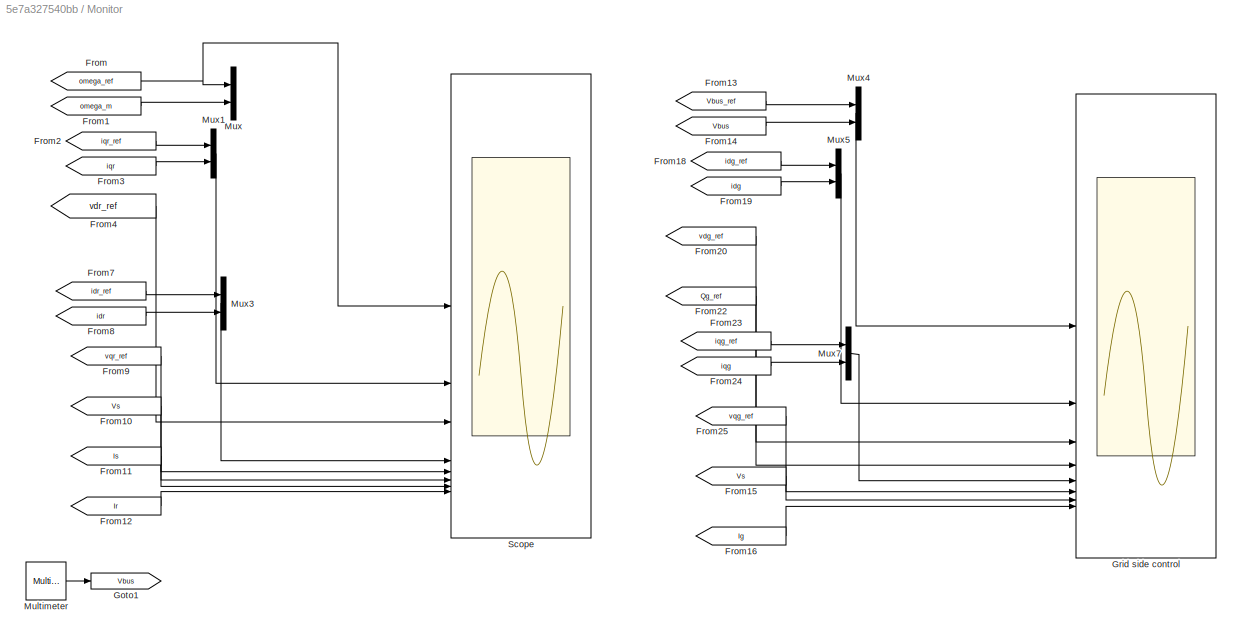
BLOCK [SubSystem] Monitor
BLOCK [From] Monitor/From
  GotoTag = omega_ref
  TagVisibility = global
BLOCK [From] Monitor/From1
  GotoTag = omega_m
BLOCK [From] Monitor/From10
  GotoTag = Vs
  TagVisibility = global
BLOCK [From] Monitor/From11
  GotoTag = Is
  TagVisibility = global
BLOCK [From] Monitor/From12
  GotoTag = Ir
  TagVisibility = global
BLOCK [From] Monitor/From13
  GotoTag = Vbus_ref
  TagVisibility = global
BLOCK [From] Monitor/From14
  GotoTag = Vbus
BLOCK [From] Monitor/From15
  GotoTag = Vs
  TagVisibility = global
BLOCK [From] Monitor/From16
  GotoTag = Ig
  TagVisibility = global
BLOCK [From] Monitor/From18
  GotoTag = idg_ref
  TagVisibility = global
BLOCK [From] Monitor/From19
  GotoTag = idg
  TagVisibility = global
BLOCK [From] Monitor/From2
  GotoTag = iqr_ref
  TagVisibility = global
BLOCK [From] Monitor/From20
  GotoTag = vdg_ref
  TagVisibility = global
BLOCK [From] Monitor/From22
  GotoTag = Qg_ref
  TagVisibility = global
BLOCK [From] Monitor/From23
  GotoTag = iqg_ref
  TagVisibility = global
BLOCK [From] Monitor/From24
  GotoTag = iqg
  TagVisibility = global
BLOCK [From] Monitor/From25
  GotoTag = vqg_ref
  TagVisibility = global
BLOCK [From] Monitor/From3
  GotoTag = iqr
  TagVisibility = global
BLOCK [From] Monitor/From4
  GotoTag = vdr_ref
  TagVisibility = global
BLOCK [From] Monitor/From7
  GotoTag = idr_ref
  TagVisibility = global
BLOCK [From] Monitor/From8
  GotoTag = idr
  TagVisibility = global
BLOCK [From] Monitor/From9
  GotoTag = vqr_ref
  TagVisibility = global
BLOCK [Goto] Monitor/Goto1
  GotoTag = Vbus
BLOCK [Scope] Monitor/Grid side control
  Floating = off
  NumInputPorts = 8
  ScopeSpecificationString = Simulink.scopes.TimeScopeBlockCfg('CurrentConfiguration', extmgr.ConfigurationSet(extmgr.Configuration('Core','General UI',true,'FigureColor',[1 1 1]),extmgr.Configuration('Core','Source UI',true),extmgr.Configuration('Sources','WiredSimulink',true,'DataLoggingVariableName','ScopeData1'),extmgr.Configuration('Visuals','Time Domain',true,'SerializedDisplays',{struct('MinYLimReal','-143.75','MaxYLim...<+8141ch>
BLOCK [Reference] Monitor/Multimeter  REF=spsMultimeterLib/Multimeter
  LibrarySourceBlock = sps_lib/Sensors and Measurements/Multimeter
  SourceBlock = spsMultimeterLib/Multimeter
  SourceType = Multimeter
BLOCK [Mux] Monitor/Mux
  DisplayOption = bar
  Inputs = 2
BLOCK [Mux] Monitor/Mux1
  DisplayOption = bar
  Inputs = 2
BLOCK [Mux] Monitor/Mux3
  DisplayOption = bar
  Inputs = 2
BLOCK [Mux] Monitor/Mux4
  DisplayOption = bar
  Inputs = 2
BLOCK [Mux] Monitor/Mux5
  DisplayOption = bar
  Inputs = 2
BLOCK [Mux] Monitor/Mux7
  DisplayOption = bar
  Inputs = 2
BLOCK [Scope] Monitor/Scope
  Floating = off
  NumInputPorts = 9
  ScopeSpecificationString = Simulink.scopes.TimeScopeBlockCfg('CurrentConfiguration', extmgr.ConfigurationSet(extmgr.Configuration('Core','General UI',true),extmgr.Configuration('Core','Source UI',true),extmgr.Configuration('Sources','WiredSimulink',true),extmgr.Configuration('Visuals','Time Domain',true,'SerializedDisplays',{struct('MinYLimReal','0','MaxYLimReal','200','YLabelReal','','MinYLimMag','0.00000','MaxYLimMag','21...<+7008ch>
BLOCK [Reference] PWM Generator (2-Level)  REF=spsPWMGenerator2LevelLib/PWM Generator
(2-Level)
  LibrarySourceBlock = sps_lib/Power Electronics/Power Electronics Control/PWM Generator\n(2-Level)
  SourceBlock = spsPWMGenerator2LevelLib/PWM Generator\n(2-Level)
  SourceType = PWM Generator (2-Level)
BLOCK [Reference] PWM Generator (2-Level)1  REF=spsPWMGenerator2LevelLib/PWM Generator
(2-Level)
  LibrarySourceBlock = sps_lib/Power Electronics/Power Electronics Control/PWM Generator\n(2-Level)
  SourceBlock = spsPWMGenerator2LevelLib/PWM Generator\n(2-Level)
  SourceType = PWM Generator (2-Level)
BLOCK [RateLimiter] Rate Limiter
  FallingSlewLimit = -100/1
  RisingSlewLimit = 100/1
  SampleTimeMode = inherited
BLOCK [RateLimiter] Rate Limiter1
  FallingSlewLimit = -1000e3/2
  RisingSlewLimit = 1000e3/2
  SampleTimeMode = inherited
BLOCK [Reference] Series RLC Branch  REF=spsSeriesRLCBranchLib/Series RLC Branch
  LibrarySourceBlock = sps_lib/Passives/Series RLC Branch
  NameLocation = left
  SourceBlock = spsSeriesRLCBranchLib/Series RLC Branch
  SourceType = Series RLC Branch
BLOCK [Reference] Series RLC Branch1  REF=spsSeriesRLCBranchLib/Series RLC Branch
  LibrarySourceBlock = sps_lib/Passives/Series RLC Branch
  NameLocation = top
  SourceBlock = spsSeriesRLCBranchLib/Series RLC Branch
  SourceType = Series RLC Branch
BLOCK [Reference] Series RLC Branch2  REF=spsSeriesRLCBranchLib/Series RLC Branch
  LibrarySourceBlock = sps_lib/Passives/Series RLC Branch
  NameLocation = top
  SourceBlock = spsSeriesRLCBranchLib/Series RLC Branch
  SourceType = Series RLC Branch
BLOCK [Reference] Series RLC Branch3  REF=spsSeriesRLCBranchLib/Series RLC Branch
  LibrarySourceBlock = sps_lib/Passives/Series RLC Branch
  NameLocation = top
  SourceBlock = spsSeriesRLCBranchLib/Series RLC Branch
  SourceType = Series RLC Branch
BLOCK [SubSystem] Subsystem
BLOCK [BusSelector] Subsystem/Bus Selector
  OutputSignals = Mechanical.Rotor angle thetam (rad),Mechanical.Rotor speed (wm),Mechanical.Electromagnetic torque Te (N*m)
BLOCK [Goto] Subsystem/Goto
  GotoTag = tita
BLOCK [Goto] Subsystem/Goto1
  GotoTag = omega_m
BLOCK [Goto] Subsystem/Goto2
  GotoTag = Tem
BLOCK [Inport] Subsystem/In1
BLOCK [Reference] Three-Phase Programmable Voltage Source  REF=spsThreePhaseProgrammableVoltageSourceLib/Three-Phase
Programmable
Voltage Source
  LibrarySourceBlock = sps_lib/Sources/Three-Phase\nProgrammable\nVoltage Source
  SourceBlock = spsThreePhaseProgrammableVoltageSourceLib/Three-Phase\nProgrammable\nVoltage Source
  SourceType = Three-Phase Programmable Voltage Source
BLOCK [Reference] Three-Phase Transformer (Two Windings)  REF=spsThreePhaseTransformerTwoWindingsLib/Three-Phase
Transformer
(Two Windings)
  LibrarySourceBlock = sps_lib/Power Grid Elements/Three-Phase\nTransformer\n(Two Windings)
  SourceBlock = spsThreePhaseTransformerTwoWindingsLib/Three-Phase\nTransformer\n(Two Windings)
  SourceType = Three-Phase Transformer (Two Windings)
BLOCK [Reference] Three-Phase V-I Measurement  REF=spsThreePhaseVIMeasurementLib/Three-Phase
V-I Measurement
  LibrarySourceBlock = sps_lib/Sensors and Measurements/Three-Phase\nV-I Measurement
  SourceBlock = spsThreePhaseVIMeasurementLib/Three-Phase\nV-I Measurement
  SourceType = Three-Phase VI Measurement
BLOCK [Reference] Three-Phase V-I Measurement1  REF=spsThreePhaseVIMeasurementLib/Three-Phase
V-I Measurement
  LibrarySourceBlock = sps_lib/Sensors and Measurements/Three-Phase\nV-I Measurement
  NameLocation = top
  SourceBlock = spsThreePhaseVIMeasurementLib/Three-Phase\nV-I Measurement
  SourceType = Three-Phase VI Measurement
BLOCK [Reference] Three-Phase V-I Measurement2  REF=spsThreePhaseVIMeasurementLib/Three-Phase
V-I Measurement
  LibrarySourceBlock = sps_lib/Sensors and Measurements/Three-Phase\nV-I Measurement
  SourceBlock = spsThreePhaseVIMeasurementLib/Three-Phase\nV-I Measurement
  SourceType = Three-Phase VI Measurement
BLOCK [Reference] Universal Bridge  REF=spsUniversalBridgeLib/Universal Bridge
  LibrarySourceBlock = sps_lib/Power Electronics/Universal Bridge
  SourceBlock = spsUniversalBridgeLib/Universal Bridge
  SourceType = Universal Bridge
BLOCK [Reference] Universal Bridge1  REF=spsUniversalBridgeLib/Universal Bridge
  LibrarySourceBlock = sps_lib/Power Electronics/Universal Bridge
  NameLocation = top
  SourceBlock = spsUniversalBridgeLib/Universal Bridge
  SourceType = Universal Bridge
BLOCK [SubSystem] WT model
BLOCK [Lookup_n-D] WT model/1-D Lookup Table
  BreakpointsForDimension1 = tab_lambda
  BreakpointsForDimension1DataTypeStr = Inherit: Inherit from 'Breakpoint data'
  InputPortMap = u0
  InternalRulePriority = Speed
  NumberOfTableDimensions = 1
  RndMeth = Simplest
  Table = Ct
  TableDataTypeStr = Inherit: Inherit from 'Table data'
BLOCK [Constant] WT model/Constant3
BLOCK [From] WT model/From
  GotoTag = omega_m
BLOCK [Gain] WT model/Gain
  Gain = 1/N
BLOCK [Gain] WT model/Gain1
  Gain = -1/N
BLOCK [SubSystem] WT model/MATLAB Function1
  ErrorFcn = Stateflow.Translate.translate
  LibrarySourceBlock = simulink/User-Defined\nFunctions/MATLAB Function
  PermitHierarchicalResolution = ExplicitOnly
  SFBlockType = MATLAB Function
  TreatAsAtomicUnit = on
BLOCK [Demux] WT model/MATLAB Function1/ Demux 
  Outputs = 1
BLOCK [S-Function] WT model/MATLAB Function1/ SFunction 
  EnableBusSupport = on
  FunctionName = sf_sfun
  PortCounts = [1 2]
  SFcnIsStateOwnerBlock = off
  SFunctionDeploymentMode = off
  Tag = Stateflow S-Function 15
BLOCK [Terminator] WT model/MATLAB Function1/ Terminator 
BLOCK [Inport] WT model/MATLAB Function1/u
BLOCK [Outport] WT model/MATLAB Function1/y
BLOCK [SubSystem] WT model/MATLAB Function2
  ErrorFcn = Stateflow.Translate.translate
  LibrarySourceBlock = simulink/User-Defined\nFunctions/MATLAB Function
  PermitHierarchicalResolution = ExplicitOnly
  SFBlockType = MATLAB Function
  TreatAsAtomicUnit = on
BLOCK [Demux] WT model/MATLAB Function2/ Demux 
  Outputs = 1
BLOCK [S-Function] WT model/MATLAB Function2/ SFunction 
  EnableBusSupport = on
  FunctionName = sf_sfun
  PortCounts = [1 2]
  SFcnIsStateOwnerBlock = off
  SFunctionDeploymentMode = off
  Tag = Stateflow S-Function 14
BLOCK [Terminator] WT model/MATLAB Function2/ Terminator 
BLOCK [Inport] WT model/MATLAB Function2/u
BLOCK [Outport] WT model/MATLAB Function2/y
BLOCK [Mux] WT model/Mux
  DisplayOption = bar
  Inputs = 2
BLOCK [Mux] WT model/Mux1
  DisplayOption = bar
  Inputs = 2
BLOCK [Outport] WT model/Tt
BLOCK [Inport] WT model/Vw
BLOCK [ZeroOrderHold] Zero-Order Hold
  SampleTime = 1/fsw
BLOCK [ZeroOrderHold] Zero-Order Hold1
  SampleTime = 1/fsw
BLOCK [ZeroOrderHold] Zero-Order Hold2
  SampleTime = 1/fsw
BLOCK [ZeroOrderHold] Zero-Order Hold3
  SampleTime = 1/fsw
BLOCK [ZeroOrderHold] Zero-Order Hold4
  SampleTime = 1/fsw
BLOCK [ZeroOrderHold] Zero-Order Hold5
  SampleTime = 1/fsw
BLOCK [ZeroOrderHold] Zero-Order Hold6
  SampleTime = 1/fsw
BLOCK [ZeroOrderHold] Zero-Order Hold7
  SampleTime = 1/fsw
BLOCK [ZeroOrderHold] Zero-Order Hold8
  SampleTime = 1/fsw
BLOCK [ZeroOrderHold] Zero-Order Hold9
  SampleTime = 1/fsw
BLOCK [Reference] powergui  REF=sps_lib/powergui
  Priority = 1
  SourceBlock = sps_lib/powergui
  SourceType = PSB option menu block
ANNOTATION Control1/Angle: tita_g
ANNOTATION WT model: Ct
ANNOTATION WT model: lambda
LINE Asynchronous Machine SI Units:1 -> Subsystem:1
LINE Constant1:1 -> Rate Limiter:1
LINE Constant2:1 -> Control:2
LINE Constant3:1 -> Zero-Order Hold9:1
LINE Constant4:1 -> Rate Limiter1:1
LINE Constant:1 -> WT model:1
LINE Control/3rd harmonic injection/Gain:1 -> Control/3rd harmonic injection/Sum:2
LINE Control/3rd harmonic injection/Max1:1 -> Control/3rd harmonic injection/Sum1:2
LINE Control/3rd harmonic injection/Min1:1 -> Control/3rd harmonic injection/Sum1:1
LINE Control/3rd harmonic injection/Sum1:1 -> Control/3rd harmonic injection/Gain:1
LINE Control/3rd harmonic injection/Sum:1 -> Control/3rd harmonic injection/Out1:1
NET Control/3rd harmonic injection/in1:1 -> Control/3rd harmonic injection/Max1:1, Control/3rd harmonic injection/Min1:1, Control/3rd harmonic injection/Sum:1
LINE Control/3rd harmonic injection:1 -> Control/Gain:1
LINE Control/Angle/Constant:1 -> Control/Angle/tita_s:2
LINE Control/Angle/Demux:1 -> Control/Angle/Trigonometric Function:2
LINE Control/Angle/Demux:2 -> Control/Angle/Trigonometric Function:1
LINE Control/Angle/Gain:1 -> Control/Angle/Sum:2
LINE Control/Angle/Sum:1 -> Control/Angle/tita_r:1
LINE Control/Angle/Trigonometric Function:1 -> Control/Angle/tita_s:1
LINE Control/Angle/Vs:1 -> Control/Angle/abc-->DQ:1
LINE Control/Angle/abc-->DQ/MATLAB Function1:1 -> Control/Angle/abc-->DQ/Mux:2
LINE Control/Angle/abc-->DQ/MATLAB Function:1 -> Control/Angle/abc-->DQ/Mux:1
LINE Control/Angle/abc-->DQ/Mux:1 -> Control/Angle/abc-->DQ/alpha//beta:1
NET Control/Angle/abc-->DQ/abc:1 -> Control/Angle/abc-->DQ/MATLAB Function1:1, Control/Angle/abc-->DQ/MATLAB Function:1
LINE Control/Angle/abc-->DQ:1 -> Control/Angle/Demux:1
LINE Control/Angle/tita_m:1 -> Control/Angle/Gain:1
LINE Control/Angle/tita_s:1 -> Control/Angle/Sum:1
NET Control/Angle:1 -> Control/DQ-->d//q:2, Control/d//q-->D//Q:2
LINE Control/Cancelation of cc/Constant1:1 -> Control/Cancelation of cc/Mux:6
LINE Control/Cancelation of cc/Constant:1 -> Control/Cancelation of cc/Gain:1
LINE Control/Cancelation of cc/From1:1 -> Control/Cancelation of cc/Mux:4
LINE Control/Cancelation of cc/From:1 -> Control/Cancelation of cc/Mux:3
LINE Control/Cancelation of cc/Gain1:1 -> Control/Cancelation of cc/Sum:2
LINE Control/Cancelation of cc/Gain:1 -> Control/Cancelation of cc/Sum:1
NET Control/Cancelation of cc/MATLAB Function1:1 -> Control/Cancelation of cc/Goto1:1, Control/Cancelation of cc/Mux1:2
NET Control/Cancelation of cc/MATLAB Function:1 -> Control/Cancelation of cc/Goto:1, Control/Cancelation of cc/Mux1:1
LINE Control/Cancelation of cc/Mux1:1 -> Control/Cancelation of cc/d//q:1
NET Control/Cancelation of cc/Mux:1 -> Control/Cancelation of cc/MATLAB Function1:1, Control/Cancelation of cc/MATLAB Function:1
LINE Control/Cancelation of cc/Sum:1 -> Control/Cancelation of cc/Mux:5
LINE Control/Cancelation of cc/id:1 -> Control/Cancelation of cc/Mux:1
LINE Control/Cancelation of cc/iq:1 -> Control/Cancelation of cc/Mux:2
LINE Control/Cancelation of cc/omega:1 -> Control/Cancelation of cc/Gain1:1
LINE Control/Cancelation of cc:1 -> Control/d//q-->D//Q:1
NET Control/DQ-->abc/D//Q:1 -> Control/DQ-->abc/MATLAB Function1:1, Control/DQ-->abc/MATLAB Function2:1, Control/DQ-->abc/MATLAB Function:1
LINE Control/DQ-->abc/MATLAB Function1:1 -> Control/DQ-->abc/Mux:2
LINE Control/DQ-->abc/MATLAB Function2:1 -> Control/DQ-->abc/Mux:3
LINE Control/DQ-->abc/MATLAB Function:1 -> Control/DQ-->abc/Mux:1
LINE Control/DQ-->abc/Mux:1 -> Control/DQ-->abc/abc:1
LINE Control/DQ-->abc:1 -> Control/3rd harmonic injection:1
LINE Control/DQ-->d//q/D//Q:1 -> Control/DQ-->d//q/Mux:1
LINE Control/DQ-->d//q/MATLAB Function1:1 -> Control/DQ-->d//q/Mux1:2
LINE Control/DQ-->d//q/MATLAB Function:1 -> Control/DQ-->d//q/Mux1:1
LINE Control/DQ-->d//q/Mux1:1 -> Control/DQ-->d//q/d//q:1
NET Control/DQ-->d//q/Mux:1 -> Control/DQ-->d//q/MATLAB Function1:1, Control/DQ-->d//q/MATLAB Function:1
LINE Control/DQ-->d//q/tita:1 -> Control/DQ-->d//q/Mux:2
LINE Control/DQ-->d//q:1 -> Control/Demux:1
NET Control/Demux:1 -> Control/Goto:1, Control/PI id:2
NET Control/Demux:2 -> Control/Goto1:1, Control/PI iq:2
NET Control/Gain1:1 -> Control/Goto3:1, Control/PI iq:1
LINE Control/Gain2:1 -> Control/abc-->DQ:1
LINE Control/Gain3:1 -> Control/Vabc_ref:1
LINE Control/Gain:1 -> Control/Gain3:1
LINE Control/Ir:1 -> Control/Gain2:1
LINE Control/MPPT/Gain1:1 -> Control/MPPT/Gain2:1
LINE Control/MPPT/Gain2:1 -> Control/MPPT/Tem*:1
LINE Control/MPPT/Gain:1 -> Control/MPPT/MATLAB Function:1
LINE Control/MPPT/MATLAB Function:1 -> Control/MPPT/Gain1:1
LINE Control/MPPT/omega_m:1 -> Control/MPPT/Gain:1
LINE Control/MPPT:1 -> Control/Manual Switch:2
NET Control/Manual Switch:1 -> Control/Gain1:1, Control/Goto5:1
LINE Control/PI /Discrete-Time Integrator:1 -> Control/PI /Sum1:2
LINE Control/PI /Gain1:1 -> Control/PI /Discrete-Time Integrator:1
LINE Control/PI /Gain:1 -> Control/PI /Sum1:1
LINE Control/PI /Saturation:1 -> Control/PI /out:1
LINE Control/PI /Sum1:1 -> Control/PI /Saturation:1
NET Control/PI /Sum:1 -> Control/PI /Gain1:1, Control/PI /Gain:1
LINE Control/PI /meas:1 -> Control/PI /Sum:2
LINE Control/PI /ref:1 -> Control/PI /Sum:1
LINE Control/PI :1 -> Control/Manual Switch:1
LINE Control/PI id/Discrete-Time Integrator:1 -> Control/PI id/Sum1:2
LINE Control/PI id/Gain1:1 -> Control/PI id/Discrete-Time Integrator:1
LINE Control/PI id/Gain:1 -> Control/PI id/Sum1:1
LINE Control/PI id/Saturation:1 -> Control/PI id/out:1
LINE Control/PI id/Sum1:1 -> Control/PI id/Saturation:1
NET Control/PI id/Sum:1 -> Control/PI id/Gain1:1, Control/PI id/Gain:1
LINE Control/PI id/meas:1 -> Control/PI id/Sum:2
LINE Control/PI id/ref:1 -> Control/PI id/Sum:1
LINE Control/PI id:1 -> Control/Cancelation of cc:1
LINE Control/PI iq/Discrete-Time Integrator:1 -> Control/PI iq/Sum1:2
LINE Control/PI iq/Gain1:1 -> Control/PI iq/Discrete-Time Integrator:1
LINE Control/PI iq/Gain:1 -> Control/PI iq/Sum1:1
LINE Control/PI iq/Saturation:1 -> Control/PI iq/out:1
LINE Control/PI iq/Sum1:1 -> Control/PI iq/Saturation:1
NET Control/PI iq/Sum:1 -> Control/PI iq/Gain1:1, Control/PI iq/Gain:1
LINE Control/PI iq/meas:1 -> Control/PI iq/Sum:2
LINE Control/PI iq/ref:1 -> Control/PI iq/Sum:1
LINE Control/PI iq:1 -> Control/Cancelation of cc:2
LINE Control/Vs:1 -> Control/Angle:2
LINE Control/abc-->DQ/MATLAB Function1:1 -> Control/abc-->DQ/Mux:2
LINE Control/abc-->DQ/MATLAB Function:1 -> Control/abc-->DQ/Mux:1
LINE Control/abc-->DQ/Mux:1 -> Control/abc-->DQ/D//Q:1
NET Control/abc-->DQ/abc:1 -> Control/abc-->DQ/MATLAB Function1:1, Control/abc-->DQ/MATLAB Function:1
LINE Control/abc-->DQ:1 -> Control/DQ-->d//q:1
LINE Control/d//q-->D//Q/MATLAB Function1:1 -> Control/d//q-->D//Q/Mux1:2
LINE Control/d//q-->D//Q/MATLAB Function:1 -> Control/d//q-->D//Q/Mux1:1
LINE Control/d//q-->D//Q/Mux1:1 -> Control/d//q-->D//Q/D//Q:1
NET Control/d//q-->D//Q/Mux:1 -> Control/d//q-->D//Q/MATLAB Function1:1, Control/d//q-->D//Q/MATLAB Function:1
LINE Control/d//q-->D//Q/d//q:1 -> Control/d//q-->D//Q/Mux:1
LINE Control/d//q-->D//Q/tita:1 -> Control/d//q-->D//Q/Mux:2
LINE Control/d//q-->D//Q:1 -> Control/DQ-->abc:1
NET Control/id_reference:1 -> Control/Goto2:1, Control/PI id:1
NET Control/speed reference:1 -> Control/Goto4:1, Control/PI :1
NET Control/speed:1 -> Control/Cancelation of cc:3, Control/MPPT:1, Control/PI :2
LINE Control/tita:1 -> Control/Angle:1
LINE Control1/3rd harmonic injection/Gain:1 -> Control1/3rd harmonic injection/Sum:2
LINE Control1/3rd harmonic injection/Max1:1 -> Control1/3rd harmonic injection/Sum1:2
LINE Control1/3rd harmonic injection/Min1:1 -> Control1/3rd harmonic injection/Sum1:1
LINE Control1/3rd harmonic injection/Sum1:1 -> Control1/3rd harmonic injection/Gain:1
LINE Control1/3rd harmonic injection/Sum:1 -> Control1/3rd harmonic injection/Out1:1
NET Control1/3rd harmonic injection/in1:1 -> Control1/3rd harmonic injection/Max1:1, Control1/3rd harmonic injection/Min1:1, Control1/3rd harmonic injection/Sum:1
LINE Control1/3rd harmonic injection:1 -> Control1/Gain:1
LINE Control1/Angle/Demux:1 -> Control1/Angle/Trigonometric Function:2
LINE Control1/Angle/Demux:2 -> Control1/Angle/Trigonometric Function:1
LINE Control1/Angle/Trigonometric Function:1 -> Control1/Angle/tita_g:1
LINE Control1/Angle/Vs:1 -> Control1/Angle/abc-->alpha//beta:1
LINE Control1/Angle/abc-->alpha//beta/MATLAB Function1:1 -> Control1/Angle/abc-->alpha//beta/Mux:2
LINE Control1/Angle/abc-->alpha//beta/MATLAB Function:1 -> Control1/Angle/abc-->alpha//beta/Mux:1
LINE Control1/Angle/abc-->alpha//beta/Mux:1 -> Control1/Angle/abc-->alpha//beta/alpha//beta:1
NET Control1/Angle/abc-->alpha//beta/abc:1 -> Control1/Angle/abc-->alpha//beta/MATLAB Function1:1, Control1/Angle/abc-->alpha//beta/MATLAB Function:1
LINE Control1/Angle/abc-->alpha//beta:1 -> Control1/Angle/Demux:1
NET Control1/Angle:1 -> Control1/alpha//beta-->d//q:2, Control1/d//q-->alpha//beta:2
LINE Control1/Cancelation of ct/From1:1 -> Control1/Cancelation of ct/Mux:4
LINE Control1/Cancelation of ct/From:1 -> Control1/Cancelation of ct/Mux:3
NET Control1/Cancelation of ct/MATLAB Function1:1 -> Control1/Cancelation of ct/Goto1:1, Control1/Cancelation of ct/Mux1:2
NET Control1/Cancelation of ct/MATLAB Function:1 -> Control1/Cancelation of ct/Goto:1, Control1/Cancelation of ct/Mux1:1
LINE Control1/Cancelation of ct/Mux1:1 -> Control1/Cancelation of ct/d//q:1
NET Control1/Cancelation of ct/Mux:1 -> Control1/Cancelation of ct/MATLAB Function1:1, Control1/Cancelation of ct/MATLAB Function:1
LINE Control1/Cancelation of ct/id:1 -> Control1/Cancelation of ct/Mux:1
LINE Control1/Cancelation of ct/iq:1 -> Control1/Cancelation of ct/Mux:2
LINE Control1/Cancelation of ct:1 -> Control1/d//q-->alpha//beta:1
NET Control1/Demux:1 -> Control1/Goto:1, Control1/PI id:2
NET Control1/Demux:2 -> Control1/Goto1:1, Control1/PI iq:2
NET Control1/Gain1:1 -> Control1/Goto3:1, Control1/PI iq:1
NET Control1/Gain2:1 -> Control1/Goto2:1, Control1/PI id:1
LINE Control1/Gain:1 -> Control1/Vabc_ref:1
LINE Control1/Ig:1 -> Control1/abc-->alpha//beta:1
LINE Control1/PI /Discrete-Time Integrator:1 -> Control1/PI /Sum1:2
LINE Control1/PI /Gain1:1 -> Control1/PI /Discrete-Time Integrator:1
LINE Control1/PI /Gain:1 -> Control1/PI /Sum1:1
LINE Control1/PI /Saturation:1 -> Control1/PI /out:1
LINE Control1/PI /Sum1:1 -> Control1/PI /Saturation:1
NET Control1/PI /Sum:1 -> Control1/PI /Gain1:1, Control1/PI /Gain:1
LINE Control1/PI /meas:1 -> Control1/PI /Sum:2
LINE Control1/PI /ref:1 -> Control1/PI /Sum:1
LINE Control1/PI :1 -> Control1/Gain2:1
LINE Control1/PI id/Discrete-Time Integrator:1 -> Control1/PI id/Sum1:2
LINE Control1/PI id/Gain1:1 -> Control1/PI id/Discrete-Time Integrator:1
LINE Control1/PI id/Gain:1 -> Control1/PI id/Sum1:1
LINE Control1/PI id/Saturation:1 -> Control1/PI id/out:1
LINE Control1/PI id/Sum1:1 -> Control1/PI id/Saturation:1
NET Control1/PI id/Sum:1 -> Control1/PI id/Gain1:1, Control1/PI id/Gain:1
LINE Control1/PI id/meas:1 -> Control1/PI id/Sum:2
LINE Control1/PI id/ref:1 -> Control1/PI id/Sum:1
LINE Control1/PI id:1 -> Control1/Cancelation of ct:1
LINE Control1/PI iq/Discrete-Time Integrator:1 -> Control1/PI iq/Sum1:2
LINE Control1/PI iq/Gain1:1 -> Control1/PI iq/Discrete-Time Integrator:1
LINE Control1/PI iq/Gain:1 -> Control1/PI iq/Sum1:1
LINE Control1/PI iq/Saturation:1 -> Control1/PI iq/out:1
LINE Control1/PI iq/Sum1:1 -> Control1/PI iq/Saturation:1
NET Control1/PI iq/Sum:1 -> Control1/PI iq/Gain1:1, Control1/PI iq/Gain:1
LINE Control1/PI iq/meas:1 -> Control1/PI iq/Sum:2
LINE Control1/PI iq/ref:1 -> Control1/PI iq/Sum:1
LINE Control1/PI iq:1 -> Control1/Cancelation of ct:2
NET Control1/Qg_reference:1 -> Control1/Gain1:1, Control1/Goto5:1
LINE Control1/Sum:1 -> Control1/3rd harmonic injection:1
NET Control1/Vbus reference:1 -> Control1/Goto4:1, Control1/PI :1
LINE Control1/Vbus:1 -> Control1/PI :2
NET Control1/Vs:1 -> Control1/Angle:1, Control1/Sum:2
LINE Control1/abc-->alpha//beta/MATLAB Function1:1 -> Control1/abc-->alpha//beta/Mux:2
LINE Control1/abc-->alpha//beta/MATLAB Function:1 -> Control1/abc-->alpha//beta/Mux:1
LINE Control1/abc-->alpha//beta/Mux:1 -> Control1/abc-->alpha//beta/alpha//beta:1
NET Control1/abc-->alpha//beta/abc:1 -> Control1/abc-->alpha//beta/MATLAB Function1:1, Control1/abc-->alpha//beta/MATLAB Function:1
LINE Control1/abc-->alpha//beta:1 -> Control1/alpha//beta-->d//q:1
LINE Control1/alpha//beta-->d//q/D//Q:1 -> Control1/alpha//beta-->d//q/Mux:1
LINE Control1/alpha//beta-->d//q/MATLAB Function1:1 -> Control1/alpha//beta-->d//q/Mux1:2
LINE Control1/alpha//beta-->d//q/MATLAB Function:1 -> Control1/alpha//beta-->d//q/Mux1:1
LINE Control1/alpha//beta-->d//q/Mux1:1 -> Control1/alpha//beta-->d//q/d//q:1
NET Control1/alpha//beta-->d//q/Mux:1 -> Control1/alpha//beta-->d//q/MATLAB Function1:1, Control1/alpha//beta-->d//q/MATLAB Function:1
LINE Control1/alpha//beta-->d//q/tita:1 -> Control1/alpha//beta-->d//q/Mux:2
LINE Control1/alpha//beta-->d//q:1 -> Control1/Demux:1
LINE Control1/alpha//beta->abc/MATLAB Function1:1 -> Control1/alpha//beta->abc/Mux:2
LINE Control1/alpha//beta->abc/MATLAB Function2:1 -> Control1/alpha//beta->abc/Mux:3
LINE Control1/alpha//beta->abc/MATLAB Function:1 -> Control1/alpha//beta->abc/Mux:1
LINE Control1/alpha//beta->abc/Mux:1 -> Control1/alpha//beta->abc/abc:1
NET Control1/alpha//beta->abc/alpha//beta:1 -> Control1/alpha//beta->abc/MATLAB Function1:1, Control1/alpha//beta->abc/MATLAB Function2:1, Control1/alpha//beta->abc/MATLAB Function:1
LINE Control1/alpha//beta->abc:1 -> Control1/Sum:1
LINE Control1/d//q-->alpha//beta/MATLAB Function1:1 -> Control1/d//q-->alpha//beta/Mux1:2
LINE Control1/d//q-->alpha//beta/MATLAB Function:1 -> Control1/d//q-->alpha//beta/Mux1:1
LINE Control1/d//q-->alpha//beta/Mux1:1 -> Control1/d//q-->alpha//beta/alpha//beta:1
NET Control1/d//q-->alpha//beta/Mux:1 -> Control1/d//q-->alpha//beta/MATLAB Function1:1, Control1/d//q-->alpha//beta/MATLAB Function:1
LINE Control1/d//q-->alpha//beta/d//q:1 -> Control1/d//q-->alpha//beta/Mux:1
LINE Control1/d//q-->alpha//beta/tita:1 -> Control1/d//q-->alpha//beta/Mux:2
LINE Control1/d//q-->alpha//beta:1 -> Control1/alpha//beta->abc:1
LINE Control1:1 -> PWM Generator (2-Level)1:1
LINE Control:1 -> PWM Generator (2-Level):1
LINE From1:1 -> Zero-Order Hold:1
LINE From2:1 -> Zero-Order Hold2:1
LINE From3:1 -> Zero-Order Hold3:1
LINE From4:1 -> Zero-Order Hold6:1
LINE From5:1 -> Zero-Order Hold5:1
LINE From6:1 -> Zero-Order Hold8:1
LINE From:1 -> Zero-Order Hold1:1
LINE Monitor/From10:1 -> Monitor/Scope:7
LINE Monitor/From11:1 -> Monitor/Scope:8
LINE Monitor/From12:1 -> Monitor/Scope:9
LINE Monitor/From13:1 -> Monitor/Mux4:1
LINE Monitor/From14:1 -> Monitor/Mux4:2
LINE Monitor/From15:1 -> Monitor/Grid side control:7
LINE Monitor/From16:1 -> Monitor/Grid side control:8
LINE Monitor/From18:1 -> Monitor/Mux5:1
LINE Monitor/From19:1 -> Monitor/Mux5:2
LINE Monitor/From1:1 -> Monitor/Mux:2
LINE Monitor/From20:1 -> Monitor/Grid side control:3
LINE Monitor/From22:1 -> Monitor/Grid side control:4
LINE Monitor/From23:1 -> Monitor/Mux7:1
LINE Monitor/From24:1 -> Monitor/Mux7:2
LINE Monitor/From25:1 -> Monitor/Grid side control:6
LINE Monitor/From2:1 -> Monitor/Mux1:1
LINE Monitor/From3:1 -> Monitor/Mux1:2
LINE Monitor/From4:1 -> Monitor/Scope:3
LINE Monitor/From7:1 -> Monitor/Mux3:1
LINE Monitor/From8:1 -> Monitor/Mux3:2
LINE Monitor/From9:1 -> Monitor/Scope:6
NET Monitor/From:1 -> Monitor/Mux:1, Monitor/Scope:1
LINE Monitor/Multimeter:1 -> Monitor/Goto1:1
LINE Monitor/Mux1:1 -> Monitor/Scope:2
LINE Monitor/Mux3:1 -> Monitor/Scope:5
LINE Monitor/Mux4:1 -> Monitor/Grid side control:1
LINE Monitor/Mux5:1 -> Monitor/Grid side control:2
LINE Monitor/Mux7:1 -> Monitor/Grid side control:5
LINE PWM Generator (2-Level)1:1 -> Universal Bridge1:1
LINE PWM Generator (2-Level):1 -> Universal Bridge:1
LINE Rate Limiter1:1 -> Zero-Order Hold7:1
LINE Rate Limiter:1 -> Zero-Order Hold4:1
LINE Subsystem/Bus Selector:1 -> Subsystem/Goto:1
LINE Subsystem/Bus Selector:2 -> Subsystem/Goto1:1
LINE Subsystem/Bus Selector:3 -> Subsystem/Goto2:1
LINE Subsystem/In1:1 -> Subsystem/Bus Selector:1
LINE WT model/1-D Lookup Table:1 -> WT model/Mux1:1
LINE WT model/From:1 -> WT model/Gain:1
LINE WT model/Gain1:1 -> WT model/Tt:1
LINE WT model/Gain:1 -> WT model/Mux:2
LINE WT model/MATLAB Function1:1 -> WT model/1-D Lookup Table:1
LINE WT model/MATLAB Function2:1 -> WT model/Gain1:1
LINE WT model/Mux1:1 -> WT model/MATLAB Function2:1
LINE WT model/Mux:1 -> WT model/MATLAB Function1:1
NET WT model/Vw:1 -> WT model/Mux1:2, WT model/Mux:1
LINE WT model:1 -> Asynchronous Machine SI Units:1
LINE Zero-Order Hold1:1 -> Control:4
LINE Zero-Order Hold2:1 -> Control:5
LINE Zero-Order Hold3:1 -> Control:6
LINE Zero-Order Hold4:1 -> Control:1
LINE Zero-Order Hold5:1 -> Control1:4
LINE Zero-Order Hold6:1 -> Control1:5
LINE Zero-Order Hold7:1 -> Control1:2
LINE Zero-Order Hold8:1 -> Control1:3
LINE Zero-Order Hold9:1 -> Control1:1
LINE Zero-Order Hold:1 -> Control:3
PLINE Asynchronous Machine SI Units:LConn1 -- Three-Phase V-I Measurement:RConn1
PLINE Asynchronous Machine SI Units:LConn2 -- Three-Phase V-I Measurement:RConn2
PLINE Asynchronous Machine SI Units:LConn3 -- Three-Phase V-I Measurement:RConn3
PLINE Asynchronous Machine SI Units:RConn1 -- Three-Phase Transformer (Two Windings):LConn1
PLINE Asynchronous Machine SI Units:RConn2 -- Three-Phase Transformer (Two Windings):LConn2
PLINE Asynchronous Machine SI Units:RConn3 -- Three-Phase Transformer (Two Windings):LConn3
PLINE Ground:LConn1 -- Three-Phase Programmable Voltage Source:LConn1
PLINE Series RLC Branch1:LConn1 -- Three-Phase V-I Measurement2:RConn1
PNET net1: Series RLC Branch1:RConn1 -- Three-Phase Programmable Voltage Source:RConn1 -- Three-Phase V-I Measurement:LConn1
PLINE Series RLC Branch2:LConn1 -- Three-Phase V-I Measurement2:RConn2
PNET net2: Series RLC Branch2:RConn1 -- Three-Phase Programmable Voltage Source:RConn2 -- Three-Phase V-I Measurement:LConn2
PLINE Series RLC Branch3:LConn1 -- Three-Phase V-I Measurement2:RConn3
PNET net3: Series RLC Branch3:RConn1 -- Three-Phase Programmable Voltage Source:RConn3 -- Three-Phase V-I Measurement:LConn3
PNET net4: Series RLC Branch:LConn1 -- Universal Bridge1:RConn1 -- Universal Bridge:RConn1
PNET net5: Series RLC Branch:RConn1 -- Universal Bridge1:RConn2 -- Universal Bridge:RConn2
PLINE Three-Phase Transformer (Two Windings):RConn1 -- Three-Phase V-I Measurement1:RConn1
PLINE Three-Phase Transformer (Two Windings):RConn2 -- Three-Phase V-I Measurement1:RConn2
PLINE Three-Phase Transformer (Two Windings):RConn3 -- Three-Phase V-I Measurement1:RConn3
PLINE Three-Phase V-I Measurement1:LConn1 -- Universal Bridge:LConn1
PLINE Three-Phase V-I Measurement1:LConn2 -- Universal Bridge:LConn2
PLINE Three-Phase V-I Measurement1:LConn3 -- Universal Bridge:LConn3
PLINE Three-Phase V-I Measurement2:LConn1 -- Universal Bridge1:LConn1
PLINE Three-Phase V-I Measurement2:LConn2 -- Universal Bridge1:LConn2
PLINE Three-Phase V-I Measurement2:LConn3 -- Universal Bridge1:LConn3
note: NET lines group one-source signal fan-out (src -> all destinations, sorted); 1:1 wires keep LINE; PNET lines group multi-terminal physical nets as a canonical sorted terminal list (undirected conserving connections); 2-terminal nets keep the pairwise PLINE form
CHART WT model/MATLAB Function1 states=1 transitions=1
  STATE_LABEL 'eML_blk_kernel()'
  STATE_LABEL 'SCRIPT:\nfunction y = fcn(u)\nRadio = 42;\ny = Radio * (u(2)/u(1))'
CHART Control1/Angle/abc-->alpha//beta/MATLAB Function states=1 transitions=1
  STATE_LABEL 'eML_blk_kernel()'
  STATE_LABEL 'SCRIPT:\nfunction y = fcn(u)\ny=(2/3) * (u(1) - u(2)/2 - u(3)/2);\n\n'
CHART Control/MPPT/MATLAB Function states=1 transitions=1
  STATE_LABEL 'eML_blk_kernel()'
  STATE_LABEL 'SCRIPT:\nfunction y = fcn(u)\n\ny = u(1)*u(1);\n\n'
CHART Control1/Angle/abc-->alpha//beta/MATLAB Function1 states=1 transitions=1
  STATE_LABEL 'eML_blk_kernel()'
  STATE_LABEL 'SCRIPT:\nfunction y = fcn(u)\n\ny=(2/3) * (u(2) * (sqrt(3)/2) - u(3) * (sqrt(3)/2));\n\n'
CHART Control1/Cancelation of ct/MATLAB Function states=1 transitions=1
  STATE_LABEL 'eML_blk_kernel()'
  STATE_LABEL 'SCRIPT:\nfunction y = fcn(u)\nLg = 4.0000e-04;\nf = 50;\ny = u(1)-u(4)*Lg*(2*pi*f);\n'
CHART Control/DQ-->abc/MATLAB Function states=1 transitions=1
  STATE_LABEL 'eML_blk_kernel()'
  STATE_LABEL 'SCRIPT:\nfunction y = fcn(u)\ny=u(1);\n\n'
CHART Control1/Cancelation of ct/MATLAB Function1 states=1 transitions=1
  STATE_LABEL 'eML_blk_kernel()'
  STATE_LABEL 'SCRIPT:\nfunction y = fcn(u)\nLg = 40000e-04;\nf = 50;\ny = u(2)+u(3)*Lg*(2*pi*f);\n'
CHART Control1/alpha//beta->abc/MATLAB Function states=1 transitions=1
  STATE_LABEL 'eML_blk_kernel()'
  STATE_LABEL 'SCRIPT:\nfunction y = fcn(u)\ny=u(1);\n\n'
CHART Control1/alpha//beta->abc/MATLAB Function1 states=1 transitions=1
  STATE_LABEL 'eML_blk_kernel()'
  STATE_LABEL 'SCRIPT:\nfunction y = fcn(u)\ny=-(u(1)/2)+u(2)*(sqrt(3)/2);\n'
CHART Control1/alpha//beta->abc/MATLAB Function2 states=1 transitions=1
  STATE_LABEL 'eML_blk_kernel()'
  STATE_LABEL 'SCRIPT:\nfunction y = fcn(u)\ny=-(u(1)/2)-u(2)*(sqrt(3)/2);\n\n'
CHART Control1/abc-->alpha//beta/MATLAB Function states=1 transitions=1
  STATE_LABEL 'eML_blk_kernel()'
  STATE_LABEL 'SCRIPT:\nfunction y = fcn(u)\n\ny = (2/3) * (u(1)-u(2)/2-u(3)/2);\n\n'
CHART Control1/abc-->alpha//beta/MATLAB Function1 states=1 transitions=1
  STATE_LABEL 'eML_blk_kernel()'
  STATE_LABEL 'SCRIPT:\nfunction y = fcn(u)\n\ny = (2/3) * (u(2)*(sqrt(3)/2)-u(3)*(sqrt(3)/2));\n\n'
CHART Control1/d//q-->alpha//beta/MATLAB Function states=1 transitions=1
  STATE_LABEL 'eML_blk_kernel()'
  STATE_LABEL 'SCRIPT:\nfunction y = fcn(u)\ny=u(1)*cos(u(3))-u(2)*sin(u(3));\n'
CHART Control1/d//q-->alpha//beta/MATLAB Function1 states=1 transitions=1
  STATE_LABEL 'eML_blk_kernel()'
  STATE_LABEL 'SCRIPT:\nfunction y = fcn(u)\ny=u(1)*sin(u(3))+u(2)*cos(u(3));\n\n'
CHART Control1/alpha//beta-->d//q/MATLAB Function states=1 transitions=1
  STATE_LABEL 'eML_blk_kernel()'
  STATE_LABEL 'SCRIPT:\nfunction y = fcn(u)\n\ny = u(1)*cos(u(3))+u(2)*sin(u(3));\n'
CHART Control1/alpha//beta-->d//q/MATLAB Function1 states=1 transitions=1
  STATE_LABEL 'eML_blk_kernel()'
  STATE_LABEL 'SCRIPT:\nfunction y = fcn(u)\n\ny = -u(1)*sin(u(3))+u(2)*cos(u(3));\n'
CHART Control/DQ-->abc/MATLAB Function2 states=1 transitions=1
  STATE_LABEL 'eML_blk_kernel()'
  STATE_LABEL 'SCRIPT:\nfunction y = fcn(u)\ny=-(u(1)/2)-u(2)*(sqrt(3)/2);\n\n'
CHART Control/d//q-->D//Q/MATLAB Function states=1 transitions=1
  STATE_LABEL 'eML_blk_kernel()'
  STATE_LABEL 'SCRIPT:\nfunction y = fcn(u)\ny=u(1)*cos(u(3))-u(2)*sin(u(3));\n'
CHART Control/d//q-->D//Q/MATLAB Function1 states=1 transitions=1
  STATE_LABEL 'eML_blk_kernel()'
  STATE_LABEL 'SCRIPT:\nfunction y = fcn(u)\ny=u(1)*sin(u(3))+u(2)*cos(u(3));\n\n'
CHART Control/DQ-->d//q/MATLAB Function states=1 transitions=1
  STATE_LABEL 'eML_blk_kernel()'
  STATE_LABEL 'SCRIPT:\nfunction y = fcn(u)\n\ny = u(1)*cos(u(3))+u(2)*sin(u(3));\n'
CHART Control/DQ-->d//q/MATLAB Function1 states=1 transitions=1
  STATE_LABEL 'eML_blk_kernel()'
  STATE_LABEL 'SCRIPT:\nfunction y = fcn(u)\n\ny = -u(1)*sin(u(3))+u(2)*cos(u(3));\n'
CHART Control/abc-->DQ/MATLAB Function states=1 transitions=1
  STATE_LABEL 'eML_blk_kernel()'
  STATE_LABEL 'SCRIPT:\nfunction y = fcn(u)\n\ny = (2/3) * (u(1)-u(2)/2-u(3)/2);\n\n'
CHART Control/abc-->DQ/MATLAB Function1 states=1 transitions=1
  STATE_LABEL 'eML_blk_kernel()'
  STATE_LABEL 'SCRIPT:\nfunction y = fcn(u)\n\ny = (2/3) * (u(2)*(sqrt(3)/2)-u(3)*(sqrt(3)/2));\n\n'
CHART Control/DQ-->abc/MATLAB Function1 states=1 transitions=1
  STATE_LABEL 'eML_blk_kernel()'
  STATE_LABEL 'SCRIPT:\nfunction y = fcn(u)\ny=-(u(1)/2)+u(2)*(sqrt(3)/2);\n'
CHART Control/Angle/abc-->DQ/MATLAB Function states=1 transitions=1
  STATE_LABEL 'eML_blk_kernel()'
  STATE_LABEL 'SCRIPT:\nfunction y = fcn(u)\ny=(2/3) * (u(1) - u(2)/2 - u(3)/2);\n\n'
CHART Control/Angle/abc-->DQ/MATLAB Function1 states=1 transitions=1
  STATE_LABEL 'eML_blk_kernel()'
  STATE_LABEL 'SCRIPT:\nfunction y = fcn(u)\n\ny=(2/3) * (u(2) * (sqrt(3)/2) - u(3) * (sqrt(3)/2));\n\n'
CHART Control/Cancelation of cc/MATLAB Function states=1 transitions=1
  STATE_LABEL 'eML_blk_kernel()'
  STATE_LABEL 'SCRIPT:\nfunction y = fcn(u)\nLsi = 0.087e-3;\nLm = 2.5e-3;\nLs = Lm + Lsi;\nLr = Lm + Lsi;\nsigma = 1 - Lm^2/(Ls*Lr);\ny = u(1)-u(5)*sigma*Lr*u(4);\n'
CHART Control/Cancelation of cc/MATLAB Function1 states=1 transitions=1
  STATE_LABEL 'eML_blk_kernel()'
  STATE_LABEL 'SCRIPT:\nfunction y = fcn(u)\nLsi = 0.087e-3;\nLm = 2.5e-3;\nLs = Lm + Lsi;\nLr = Lm + Lsi;\nsigma = 1 - Lm^2/(Ls*Lr);\ny = u(2)+u(5)*sigma*Lr*u(3)*u(5)*(Lm/Ls)*u(6);\n'
CHART WT model/MATLAB Function2 states=1 transitions=1
  STATE_LABEL 'eML_blk_kernel()'
  STATE_LABEL 'SCRIPT:\nfunction y = fcn(u)\nRadio = 42;\nro = 1.225;\ny = (1/2) * ro * pi * (Radio)^3 * (u(2)^2*u(1));\n'
CHART  states=0 transitions=0
CHART  states=0 transitions=0
CHART  states=0 transitions=0
CHART  states=0 transitions=0
CHART  states=0 transitions=0
CHART  states=0 transitions=0
CHART  states=0 transitions=0
CHART  states=0 transitions=0
CHART  states=0 transitions=0
CHART  states=0 transitions=0
CHART  states=0 transitions=0
CHART  states=0 transitions=0
CHART  states=0 transitions=0
CHART  states=0 transitions=0
CHART  states=0 transitions=0
CHART  states=0 transitions=0
CHART  states=0 transitions=0
CHART  states=0 transitions=0
CHART  states=0 transitions=0
CHART  states=0 transitions=0
CHART  states=0 transitions=0
CHART  states=0 transitions=0
CHART  states=0 transitions=0
CHART  states=0 transitions=0
CHART  states=0 transitions=0
CHART  states=0 transitions=0
CHART  states=0 transitions=0
CHART  states=0 transitions=0
CHART  states=0 transitions=0
